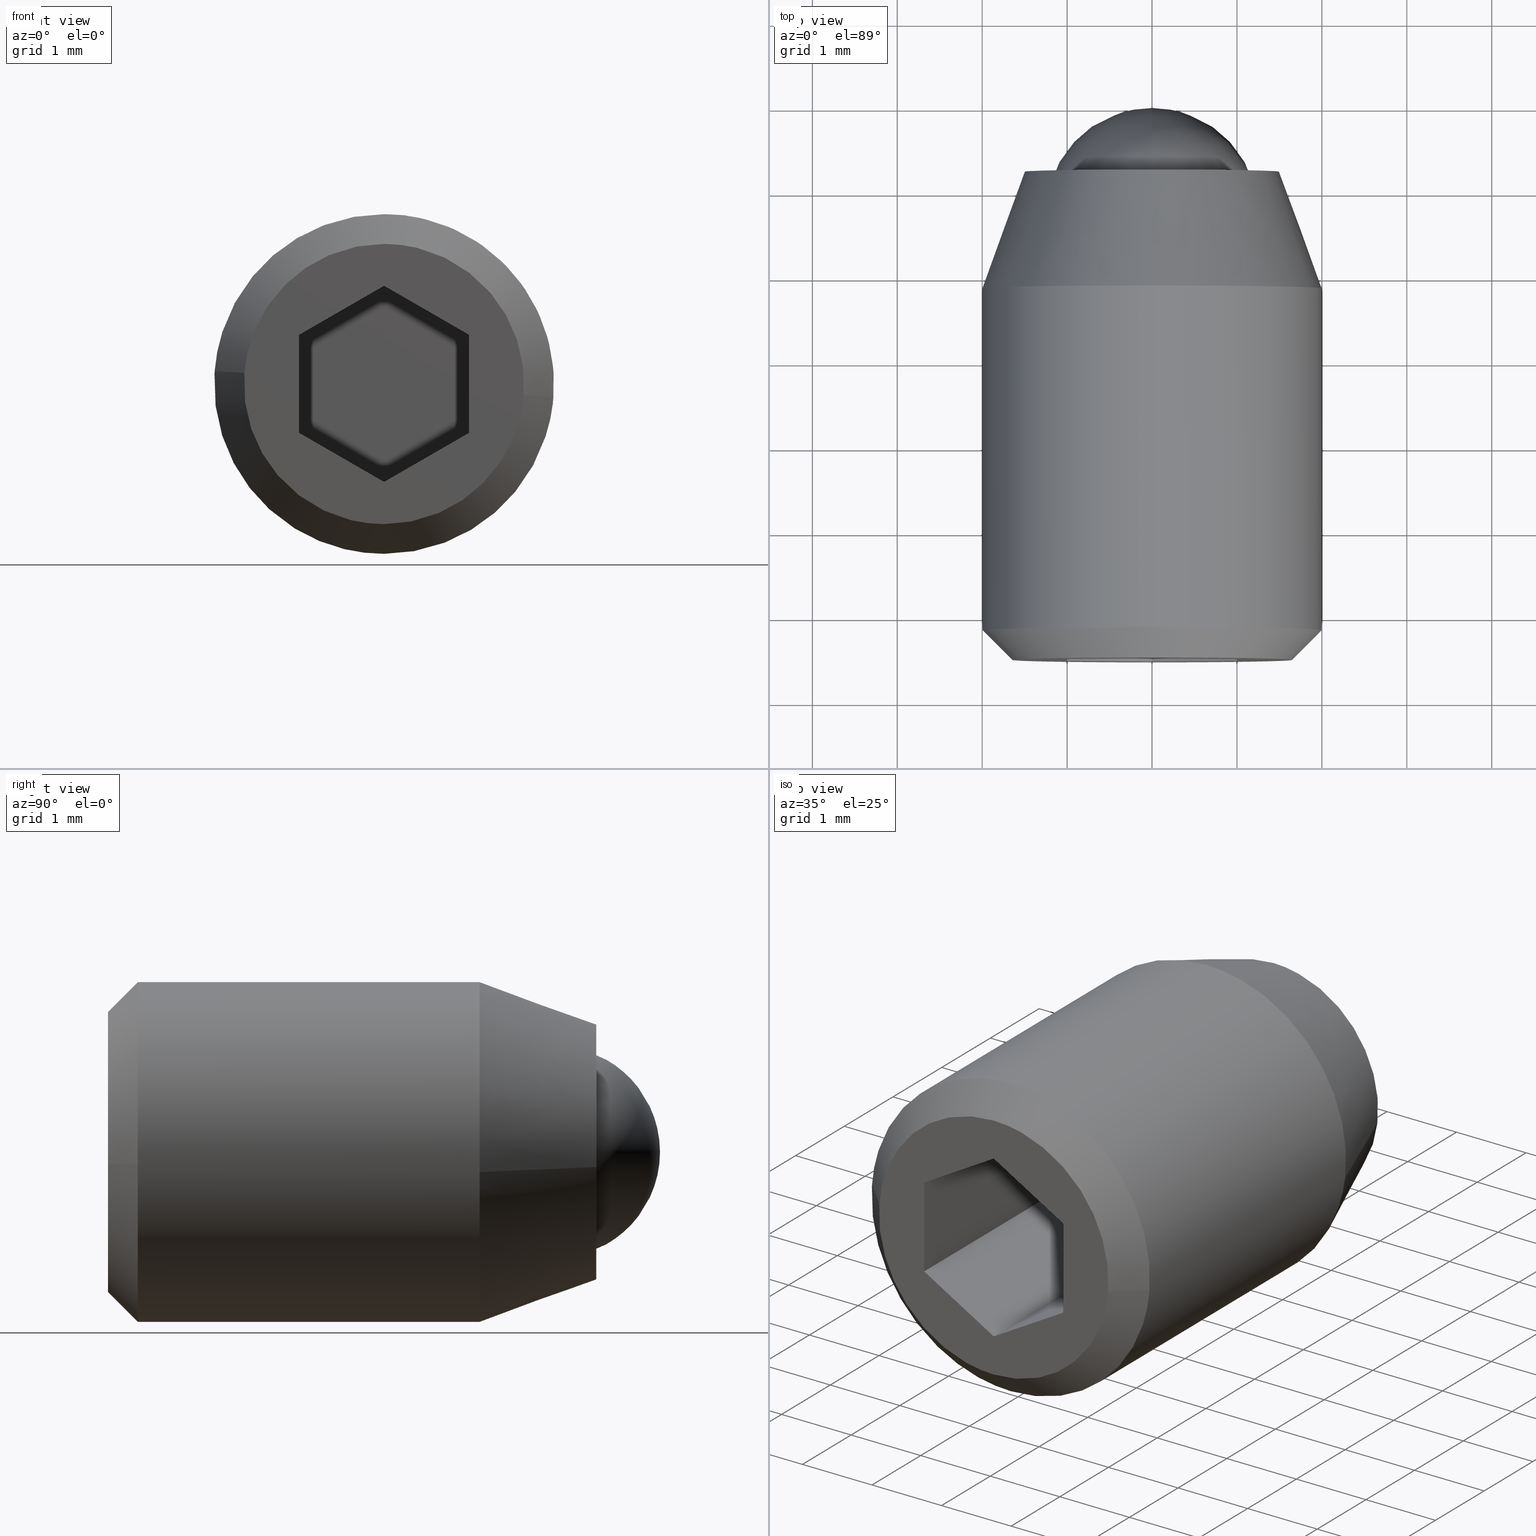
[diagram: canonical four-view strip — front | top / right | iso, engineering-drawing reading convention]
A machine part, canonical four-view strip (front | top / right | iso — engineering-drawing reading convention). The complete STEP part file that produces these views, byte-faithful:
ISO-10303-21;
HEADER;
/****************************************************************
 * Generated by software with PDE/Lib inside                    *
 * PDElib Version 4.4.1-0003, patched  Thursday August 19 11:58 *
 * International Technegroup Inc. (www.iti-oh.com)              *
 ****************************************************************/
FILE_DESCRIPTION((''),'2;1');
FILE_NAME('','2005-07-15T11:48:57',(''),(''),'','CADfix','');
FILE_SCHEMA(('AUTOMOTIVE_DESIGN'));
ENDSEC;
DATA;
#5=APPLICATION_CONTEXT('automotive design');
#6=APPLICATION_PROTOCOL_DEFINITION('Draft International Standard','automotive_design',1998,#5);
#7=PRODUCT_CONTEXT('None',#5,'mechanical');
#8=PRODUCT('body','','None',(#7));
#9=PRODUCT_RELATED_PRODUCT_CATEGORY('part','description',(#8));
#10=PRODUCT_DEFINITION_FORMATION('None','None',#8);
#11=PRODUCT_DEFINITION_CONTEXT('part definition',#5,'design');
#12=PRODUCT_DEFINITION('None','None',#10,#11);
#18=(NAMED_UNIT(*)PLANE_ANGLE_UNIT()SI_UNIT($,.RADIAN.));
#19=DIMENSIONAL_EXPONENTS(0.0,0.0,0.0,0.0,0.0,0.0,0.0);
#20=PLANE_ANGLE_MEASURE_WITH_UNIT(PLANE_ANGLE_MEASURE(0.017453292500000),#18);
#24=(CONVERSION_BASED_UNIT('DEGREE',#20)NAMED_UNIT(#19)PLANE_ANGLE_UNIT());
#28=(NAMED_UNIT(*)SI_UNIT($,.STERADIAN.)SOLID_ANGLE_UNIT());
#32=(LENGTH_UNIT()NAMED_UNIT(*)SI_UNIT(.MILLI.,.METRE.));
#34=UNCERTAINTY_MEASURE_WITH_UNIT(LENGTH_MEASURE(0.001000000000000),#32,'DISTANCE_ACCURACY_VALUE','');
#36=(GEOMETRIC_REPRESENTATION_CONTEXT(3)GLOBAL_UNCERTAINTY_ASSIGNED_CONTEXT((#34))GLOBAL_UNIT_ASSIGNED_CONTEXT((#24,#28,#32))REPRESENTATION_CONTEXT('None','None'));
#37=AXIS2_PLACEMENT_3D('',#38,#39,#40);
#38=CARTESIAN_POINT('',(0.0,0.0,0.0));
#39=DIRECTION('',(0.0,0.0,1.0));
#40=DIRECTION('',(1.0,0.0,0.0));
#41=ADVANCED_BREP_SHAPE_REPRESENTATION('',(#37,#949,#1160),#36);
#42=PRODUCT_DEFINITION_SHAPE('','',#12);
#43=SHAPE_DEFINITION_REPRESENTATION(#42,#41);
#44=CARTESIAN_POINT('',(-1.239072450710571,-0.700000000000029,0.165962465437190));
#45=CARTESIAN_POINT('',(-1.240170265936170,-0.700000000000029,0.156726662109652));
#46=CARTESIAN_POINT('',(-1.245484519310757,-0.700000000000028,0.112018410797472));
#47=CARTESIAN_POINT('',(-1.247668498027333,-0.700000000000028,0.076310674418571));
#48=CARTESIAN_POINT('',(-1.323979172445905,-0.700000000000028,-1.171357823608762));
#49=CARTESIAN_POINT('',(-0.076310674418571,-0.700000000000028,-1.247668498027333));
#50=CARTESIAN_POINT('',(1.171357823608762,-0.700000000000028,-1.323979172445905));
#51=CARTESIAN_POINT('',(1.248217309486603,-0.700000000000028,-0.067337686375873));
#52=CARTESIAN_POINT('',(1.248762860901248,-0.700000000000029,-0.058417999591657));
#53=CARTESIAN_POINT('',(-1.239072450710571,-2.801250000000001,0.165962465437190));
#54=CARTESIAN_POINT('',(-1.240170265936170,-2.801250000000001,0.156726662109652));
#55=CARTESIAN_POINT('',(-1.245484519310757,-2.801250000000001,0.112018410797472));
#56=CARTESIAN_POINT('',(-1.247668498027333,-2.801250000000000,0.076310674418571));
#57=CARTESIAN_POINT('',(-1.323979172445905,-2.801250000000000,-1.171357823608762));
#58=CARTESIAN_POINT('',(-0.076310674418571,-2.801250000000000,-1.247668498027333));
#59=CARTESIAN_POINT('',(1.171357823608762,-2.801250000000000,-1.323979172445905));
#60=CARTESIAN_POINT('',(1.248217309486603,-2.801249999999998,-0.067337686375873));
#61=CARTESIAN_POINT('',(1.248762860901248,-2.801250000000001,-0.058417999591657));
#69=(BOUNDED_SURFACE()B_SPLINE_SURFACE(2,1,((#44,#53),(#45,#54),(#46,#55),(#47,#56),(#48,#57),(#49,#58),(#50,#59),(#51,#60),(#52,#61)),.UNSPECIFIED.,.F.,.F.,.U.)B_SPLINE_SURFACE_WITH_KNOTS((3,1,2,2,1,3),(2,2),(3.062739650619981,3.078760800517997,3.141592653589793,4.712388980384690,6.283185307179586,6.299209214460788),(0.0,2.101249999999972),.UNSPECIFIED.)GEOMETRIC_REPRESENTATION_ITEM()RATIONAL_B_SPLINE_SURFACE(((0.972009114565266,0.972009114565266),(0.974757457680196,0.974757457680196),(0.988284271247462,0.988284271247462),(1.0,1.0),(0.707106781186548,0.707106781186548),(1.0,1.0),(0.707106781186548,0.707106781186548),(1.002987843618871,1.002987843618871),(1.005975687237741,1.005975687237741)))REPRESENTATION_ITEM('')SURFACE());
#70=CARTESIAN_POINT('',(-1.241262042280782,-2.749999999999995,0.147541663240071));
#71=VERTEX_POINT('',#70);
#72=CARTESIAN_POINT('',(0.0,-2.750000000000000,-1.250000000000000));
#73=VERTEX_POINT('',#72);
#74=CARTESIAN_POINT('',(-1.241262042280781,-2.749999999999996,0.147541663240071));
#75=CARTESIAN_POINT('',(-1.250000000000000,-2.750000000000000,0.074029578550991));
#76=CARTESIAN_POINT('',(-1.250000000000000,-2.750000000000000,0.0));
#77=CARTESIAN_POINT('',(-1.250000000000000,-2.750000000000000,-1.250000000000000));
#78=CARTESIAN_POINT('',(0.0,-2.750000000000000,-1.250000000000000));
#86=(BOUNDED_CURVE()B_SPLINE_CURVE(2,(#74,#75,#76,#77,#78),.UNSPECIFIED.,.F.,.U.)B_SPLINE_CURVE_WITH_KNOTS((3,2,3),(0.229562627381117,0.250000000000000,0.500000000000000),.UNSPECIFIED.)CURVE()GEOMETRIC_REPRESENTATION_ITEM()RATIONAL_B_SPLINE_CURVE((0.956027055770732,0.976056128598262,1.0,0.707106781186548,1.0))REPRESENTATION_ITEM(''));
#87=EDGE_CURVE('',#71,#73,#86,.T.);
#88=ORIENTED_EDGE('',*,*,#87,.T.);
#89=CARTESIAN_POINT('',(1.247668620391130,-2.749999999999996,-0.076308673735543));
#90=VERTEX_POINT('',#89);
#91=CARTESIAN_POINT('',(0.0,-2.750000000000000,-1.250000000000000));
#92=CARTESIAN_POINT('',(1.175884472728535,-2.750000000000000,-1.250000000000000));
#93=CARTESIAN_POINT('',(1.247668620391129,-2.749999999999995,-0.076308673735543));
#101=(BOUNDED_CURVE()B_SPLINE_CURVE(2,(#91,#92,#93),.UNSPECIFIED.,.F.,.U.)B_SPLINE_CURVE_WITH_KNOTS((3,3),(0.500000000000000,0.739333238927246),.UNSPECIFIED.)CURVE()GEOMETRIC_REPRESENTATION_ITEM()RATIONAL_B_SPLINE_CURVE((1.0,0.719603669126199,0.976072634663139))REPRESENTATION_ITEM(''));
#102=EDGE_CURVE('',#73,#90,#101,.T.);
#103=ORIENTED_EDGE('',*,*,#102,.T.);
#104=CARTESIAN_POINT('',(1.247668618881896,-0.750000000000028,-0.076308698412574));
#105=VERTEX_POINT('',#104);
#106=CARTESIAN_POINT('',(1.247668618881896,-0.750000000000028,-0.076308698412574));
#107=CARTESIAN_POINT('',(1.247668620391130,-2.749999999999996,-0.076308673735543));
#108=QUASI_UNIFORM_CURVE('',1,(#106,#107),.UNSPECIFIED.,.F.,.U.);
#109=EDGE_CURVE('',#105,#90,#108,.T.);
#110=ORIENTED_EDGE('',*,*,#109,.F.);
#111=CARTESIAN_POINT('',(0.0,-0.750000000000028,-1.250000000000000));
#112=VERTEX_POINT('',#111);
#113=CARTESIAN_POINT('',(0.0,-0.750000000000028,-1.250000000000000));
#114=CARTESIAN_POINT('',(1.175884449427832,-0.750000000000028,-1.250000000000000));
#115=CARTESIAN_POINT('',(1.247668618881896,-0.750000000000028,-0.076308698412574));
#123=(BOUNDED_CURVE()B_SPLINE_CURVE(2,(#113,#114,#115),.UNSPECIFIED.,.F.,.U.)B_SPLINE_CURVE_WITH_KNOTS((3,3),(0.500000000000000,0.739333235514525),.UNSPECIFIED.)CURVE()GEOMETRIC_REPRESENTATION_ITEM()RATIONAL_B_SPLINE_CURVE((1.0,0.719603673124450,0.976072627349011))REPRESENTATION_ITEM(''));
#124=EDGE_CURVE('',#112,#105,#123,.T.);
#125=ORIENTED_EDGE('',*,*,#124,.F.);
#126=CARTESIAN_POINT('',(-1.241262040625028,-0.750000000000028,0.147541677169969));
#127=VERTEX_POINT('',#126);
#128=CARTESIAN_POINT('',(-1.241262040625028,-0.750000000000028,0.147541677169969));
#129=CARTESIAN_POINT('',(-1.250000000000000,-0.750000000000028,0.074029585589570));
#130=CARTESIAN_POINT('',(-1.250000000000000,-0.750000000000028,0.0));
#131=CARTESIAN_POINT('',(-1.250000000000000,-0.750000000000028,-1.250000000000000));
#132=CARTESIAN_POINT('',(0.0,-0.750000000000028,-1.250000000000000));
#140=(BOUNDED_CURVE()B_SPLINE_CURVE(2,(#128,#129,#130,#131,#132),.UNSPECIFIED.,.F.,.U.)B_SPLINE_CURVE_WITH_KNOTS((3,2,3),(0.229562625484500,0.250000000000000,0.500000000000000),.UNSPECIFIED.)CURVE()GEOMETRIC_REPRESENTATION_ITEM()RATIONAL_B_SPLINE_CURVE((0.956027052053280,0.976056126376237,1.0,0.707106781186548,1.0))REPRESENTATION_ITEM(''));
#141=EDGE_CURVE('',#127,#112,#140,.T.);
#142=ORIENTED_EDGE('',*,*,#141,.F.);
#143=CARTESIAN_POINT('',(-1.241262040625028,-0.750000000000028,0.147541677169969));
#144=CARTESIAN_POINT('',(-1.241262042280782,-2.749999999999995,0.147541663240071));
#145=QUASI_UNIFORM_CURVE('',1,(#143,#144),.UNSPECIFIED.,.F.,.U.);
#146=EDGE_CURVE('',#127,#71,#145,.T.);
#147=ORIENTED_EDGE('',*,*,#146,.T.);
#148=EDGE_LOOP('',(#88,#103,#110,#125,#142,#147));
#149=FACE_OUTER_BOUND('',#148,.T.);
#150=ADVANCED_FACE('',(#149),#69,.F.);
#151=CARTESIAN_POINT('',(1.247668498027333,-0.700000000000028,-0.076310674418571));
#152=CARTESIAN_POINT('',(1.323979172445905,-0.700000000000028,1.171357823608762));
#153=CARTESIAN_POINT('',(0.076310674418571,-0.700000000000028,1.247668498027333));
#154=CARTESIAN_POINT('',(-1.101929363549376,-0.700000000000028,1.319732745915659));
#155=CARTESIAN_POINT('',(-1.241261907954584,-0.700000000000029,0.147542793320948));
#156=CARTESIAN_POINT('',(1.247668498027333,-2.801250000000000,-0.076310674418571));
#157=CARTESIAN_POINT('',(1.323979172445905,-2.801250000000000,1.171357823608762));
#158=CARTESIAN_POINT('',(0.076310674418571,-2.801250000000000,1.247668498027333));
#159=CARTESIAN_POINT('',(-1.101929363549376,-2.801250000000001,1.319732745915659));
#160=CARTESIAN_POINT('',(-1.241261907954584,-2.801250000000000,0.147542793320948));
#168=(BOUNDED_SURFACE()B_SPLINE_SURFACE(2,1,((#151,#156),(#152,#157),(#153,#158),(#154,#159),(#155,#160)),.UNSPECIFIED.,.F.,.F.,.U.)B_SPLINE_SURFACE_WITH_KNOTS((3,2,3),(2,2),(0.0,1.570796326794897,3.078760800517997),(0.0,2.101249999999972),.UNSPECIFIED.)GEOMETRIC_REPRESENTATION_ITEM()RATIONAL_B_SPLINE_SURFACE(((1.0,1.0),(0.707106781186548,0.707106781186548),(1.0,1.0),(0.718822509939086,0.718822509939086),(0.977505800795127,0.977505800795127)))REPRESENTATION_ITEM('')SURFACE());
#169=CARTESIAN_POINT('',(0.0,-2.750000000000000,1.250000000000000));
#170=VERTEX_POINT('',#169);
#171=CARTESIAN_POINT('',(0.0,-2.750000000000000,1.250000000000000));
#172=CARTESIAN_POINT('',(-1.110219175329889,-2.750000000000000,1.250000000000000));
#173=CARTESIAN_POINT('',(-1.241262042280781,-2.749999999999996,0.147541663240071));
#181=(BOUNDED_CURVE()B_SPLINE_CURVE(2,(#171,#172,#173),.UNSPECIFIED.,.F.,.U.)B_SPLINE_CURVE_WITH_KNOTS((3,3),(0.0,0.229562627381117),.UNSPECIFIED.)CURVE()GEOMETRIC_REPRESENTATION_ITEM()RATIONAL_B_SPLINE_CURVE((1.0,0.731050652588285,0.956027055770732))REPRESENTATION_ITEM(''));
#182=EDGE_CURVE('',#170,#71,#181,.T.);
#183=ORIENTED_EDGE('',*,*,#182,.T.);
#184=ORIENTED_EDGE('',*,*,#146,.F.);
#185=CARTESIAN_POINT('',(0.0,-0.750000000000028,1.250000000000000));
#186=VERTEX_POINT('',#185);
#187=CARTESIAN_POINT('',(0.0,-0.750000000000028,1.250000000000000));
#188=CARTESIAN_POINT('',(-1.110219162782896,-0.750000000000028,1.250000000000000));
#189=CARTESIAN_POINT('',(-1.241262040625028,-0.750000000000028,0.147541677169969));
#197=(BOUNDED_CURVE()B_SPLINE_CURVE(2,(#187,#188,#189),.UNSPECIFIED.,.F.,.U.)B_SPLINE_CURVE_WITH_KNOTS((3,3),(0.0,0.229562625484500),.UNSPECIFIED.)CURVE()GEOMETRIC_REPRESENTATION_ITEM()RATIONAL_B_SPLINE_CURVE((1.0,0.731050654810310,0.956027052053280))REPRESENTATION_ITEM(''));
#198=EDGE_CURVE('',#186,#127,#197,.T.);
#199=ORIENTED_EDGE('',*,*,#198,.F.);
#200=CARTESIAN_POINT('',(1.247668618881896,-0.750000000000028,-0.076308698412574));
#201=CARTESIAN_POINT('',(1.250000000000000,-0.750000000000028,-0.038189963350093));
#202=CARTESIAN_POINT('',(1.250000000000000,-0.750000000000028,0.0));
#203=CARTESIAN_POINT('',(1.250000000000000,-0.750000000000028,1.250000000000000));
#204=CARTESIAN_POINT('',(0.0,-0.750000000000028,1.250000000000000));
#212=(BOUNDED_CURVE()B_SPLINE_CURVE(2,(#200,#201,#202,#203,#204),.UNSPECIFIED.,.F.,.U.)B_SPLINE_CURVE_WITH_KNOTS((3,2,3),(0.739333235514525,0.750000000000000,1.0),.UNSPECIFIED.)CURVE()GEOMETRIC_REPRESENTATION_ITEM()RATIONAL_B_SPLINE_CURVE((0.976072627349011,0.987503108062097,1.0,0.707106781186548,1.0))REPRESENTATION_ITEM(''));
#213=EDGE_CURVE('',#105,#186,#212,.T.);
#214=ORIENTED_EDGE('',*,*,#213,.F.);
#215=ORIENTED_EDGE('',*,*,#109,.T.);
#216=CARTESIAN_POINT('',(1.247668620391129,-2.749999999999995,-0.076308673735543));
#217=CARTESIAN_POINT('',(1.250000000000000,-2.750000000000000,-0.038189950976985));
#218=CARTESIAN_POINT('',(1.250000000000000,-2.750000000000000,0.0));
#219=CARTESIAN_POINT('',(1.250000000000000,-2.750000000000000,1.250000000000000));
#220=CARTESIAN_POINT('',(0.0,-2.750000000000000,1.250000000000000));
#228=(BOUNDED_CURVE()B_SPLINE_CURVE(2,(#216,#217,#218,#219,#220),.UNSPECIFIED.,.F.,.U.)B_SPLINE_CURVE_WITH_KNOTS((3,2,3),(0.739333238927246,0.750000000000000,1.0),.UNSPECIFIED.)CURVE()GEOMETRIC_REPRESENTATION_ITEM()RATIONAL_B_SPLINE_CURVE((0.976072634663139,0.987503112060348,1.0,0.707106781186548,1.0))REPRESENTATION_ITEM(''));
#229=EDGE_CURVE('',#90,#170,#228,.T.);
#230=ORIENTED_EDGE('',*,*,#229,.T.);
#231=EDGE_LOOP('',(#183,#184,#199,#214,#215,#230));
#232=FACE_OUTER_BOUND('',#231,.T.);
#233=ADVANCED_FACE('',(#232),#168,.F.);
#234=CARTESIAN_POINT('',(-0.468647227970026,-2.023082475000000,-1.944317303249655));
#235=CARTESIAN_POINT('',(-0.297656594332521,-2.023082474999999,-1.985531916897912));
#236=CARTESIAN_POINT('',(-0.122097079069714,-2.023082474999999,-1.996269596843734));
#237=CARTESIAN_POINT('',(1.874172517774020,-2.023082475000000,-2.118366675913449));
#238=CARTESIAN_POINT('',(1.996269596843733,-2.023082474999999,-0.122097079069714));
#239=CARTESIAN_POINT('',(2.118366675913447,-2.023082475000000,1.874172517774019));
#240=CARTESIAN_POINT('',(0.122097079069714,-2.023082474999999,1.996269596843733));
#241=CARTESIAN_POINT('',(-1.874172517774020,-2.023082475000000,2.118366675913447));
#242=CARTESIAN_POINT('',(-1.996269596843733,-2.023082474999999,0.122097079069714));
#243=CARTESIAN_POINT('',(-0.468647227970026,-6.253172938125003,-1.944317303249655));
#244=CARTESIAN_POINT('',(-0.297656594332521,-6.253172938125002,-1.985531916897912));
#245=CARTESIAN_POINT('',(-0.122097079069714,-6.253172938125003,-1.996269596843734));
#246=CARTESIAN_POINT('',(1.874172517774020,-6.253172938125003,-2.118366675913449));
#247=CARTESIAN_POINT('',(1.996269596843733,-6.253172938125003,-0.122097079069714));
#248=CARTESIAN_POINT('',(2.118366675913447,-6.253172938125003,1.874172517774019));
#249=CARTESIAN_POINT('',(0.122097079069714,-6.253172938125003,1.996269596843733));
#250=CARTESIAN_POINT('',(-1.874172517774020,-6.253172938125003,2.118366675913447));
#251=CARTESIAN_POINT('',(-1.996269596843733,-6.253172938125003,0.122097079069714));
#259=(BOUNDED_SURFACE()B_SPLINE_SURFACE(2,1,((#234,#243),(#235,#244),(#236,#245),(#237,#246),(#238,#247),(#239,#248),(#240,#249),(#241,#250),(#242,#251)),.UNSPECIFIED.,.F.,.F.,.U.)B_SPLINE_SURFACE_WITH_KNOTS((3,2,2,2,3),(2,2),(0.0,0.397645019878171,3.711353518862931,7.025062017847690,10.338770516832451),(0.0,4.230090463125004),.UNSPECIFIED.)GEOMETRIC_REPRESENTATION_ITEM()RATIONAL_B_SPLINE_SURFACE(((0.938140952186599,0.938140952186599),(0.964852813742386,0.964852813742386),(1.0,1.0),(0.707106781186548,0.707106781186548),(1.0,1.0),(0.707106781186548,0.707106781186548),(1.0,1.0),(0.707106781186548,0.707106781186548),(1.0,1.0)))REPRESENTATION_ITEM('')SURFACE());
#260=CARTESIAN_POINT('',(-0.468646445757333,-6.150000000000000,-1.944317491789438));
#261=VERTEX_POINT('',#260);
#262=CARTESIAN_POINT('',(0.0,-6.150000000000000,-2.0));
#263=VERTEX_POINT('',#262);
#264=CARTESIAN_POINT('',(-0.468646445757333,-6.150000000000000,-1.944317491789438));
#265=CARTESIAN_POINT('',(-0.237630790177895,-6.150000000000000,-2.000000000000001));
#266=CARTESIAN_POINT('',(0.0,-6.150000000000000,-2.0));
#274=(BOUNDED_CURVE()B_SPLINE_CURVE(2,(#264,#265,#266),.UNSPECIFIED.,.F.,.U.)B_SPLINE_CURVE_WITH_KNOTS((3,3),(0.959962840916567,1.0),.UNSPECIFIED.)CURVE()GEOMETRIC_REPRESENTATION_ITEM()RATIONAL_B_SPLINE_CURVE((0.921211108703644,0.953093550415628,1.0))REPRESENTATION_ITEM(''));
#275=EDGE_CURVE('',#261,#263,#274,.T.);
#276=ORIENTED_EDGE('',*,*,#275,.F.);
#277=CARTESIAN_POINT('',(-0.468646455401585,-2.123739000000001,-1.944317489464851));
#278=VERTEX_POINT('',#277);
#279=CARTESIAN_POINT('',(-0.468646455401585,-2.123739000000001,-1.944317489464851));
#280=CARTESIAN_POINT('',(-0.468646445757333,-6.150000000000000,-1.944317491789438));
#281=QUASI_UNIFORM_CURVE('',1,(#279,#280),.UNSPECIFIED.,.F.,.U.);
#282=EDGE_CURVE('',#278,#261,#281,.T.);
#283=ORIENTED_EDGE('',*,*,#282,.F.);
#284=CARTESIAN_POINT('',(0.0,-2.123739000000000,-2.0));
#285=VERTEX_POINT('',#284);
#286=CARTESIAN_POINT('',(-0.468646455401585,-2.123739000000001,-1.944317489464851));
#287=CARTESIAN_POINT('',(-0.237630800238393,-2.123739000000000,-2.000000000000000));
#288=CARTESIAN_POINT('',(0.0,-2.123739000000000,-2.0));
#296=(BOUNDED_CURVE()B_SPLINE_CURVE(2,(#286,#287,#288),.UNSPECIFIED.,.F.,.U.)B_SPLINE_CURVE_WITH_KNOTS((3,3),(0.959962839301035,1.0),.UNSPECIFIED.)CURVE()GEOMETRIC_REPRESENTATION_ITEM()RATIONAL_B_SPLINE_CURVE((0.921211106130680,0.953093548522915,1.0))REPRESENTATION_ITEM(''));
#297=EDGE_CURVE('',#278,#285,#296,.T.);
#298=ORIENTED_EDGE('',*,*,#297,.T.);
#299=CARTESIAN_POINT('',(1.986018947549469,-2.123738550367196,-0.236067967675831));
#300=VERTEX_POINT('',#299);
#301=CARTESIAN_POINT('',(0.0,-2.123739000000000,-2.0));
#302=CARTESIAN_POINT('',(1.776349920778663,-2.123739000000000,-2.000000000000000));
#303=CARTESIAN_POINT('',(1.986018947549469,-2.123738550367196,-0.236067967675831));
#311=(BOUNDED_CURVE()B_SPLINE_CURVE(2,(#301,#302,#303),.UNSPECIFIED.,.F.,.U.)B_SPLINE_CURVE_WITH_KNOTS((3,3),(0.0,0.229562555603303),.UNSPECIFIED.)CURVE()GEOMETRIC_REPRESENTATION_ITEM()RATIONAL_B_SPLINE_CURVE((1.0,0.731050736681225,0.956026915083120))REPRESENTATION_ITEM(''));
#312=EDGE_CURVE('',#285,#300,#311,.T.);
#313=ORIENTED_EDGE('',*,*,#312,.T.);
#314=CARTESIAN_POINT('',(0.0,-2.123739000000000,2.0));
#315=VERTEX_POINT('',#314);
#316=CARTESIAN_POINT('',(1.986018947549469,-2.123738550367196,-0.236067967675831));
#317=CARTESIAN_POINT('',(2.000000000000000,-2.123739000000000,-0.118447751883767));
#318=CARTESIAN_POINT('',(2.0,-2.123739000000000,-4.439198E-016));
#319=CARTESIAN_POINT('',(2.000000000000000,-2.123739000000000,2.000000000000000));
#320=CARTESIAN_POINT('',(0.0,-2.123739000000000,2.0));
#328=(BOUNDED_CURVE()B_SPLINE_CURVE(2,(#316,#317,#318,#319,#320),.UNSPECIFIED.,.F.,.U.)B_SPLINE_CURVE_WITH_KNOTS((3,2,3),(0.229562555603303,0.250000000000000,0.500000000000000),.UNSPECIFIED.)CURVE()GEOMETRIC_REPRESENTATION_ITEM()RATIONAL_B_SPLINE_CURVE((0.956026915083120,0.976056044505322,1.0,0.707106781186548,1.0))REPRESENTATION_ITEM(''));
#329=EDGE_CURVE('',#300,#315,#328,.T.);
#330=ORIENTED_EDGE('',*,*,#329,.T.);
#331=CARTESIAN_POINT('',(-1.996269361620150,-2.123737383784706,0.122096106656471));
#332=VERTEX_POINT('',#331);
#333=CARTESIAN_POINT('',(0.0,-2.123739000000000,2.0));
#334=CARTESIAN_POINT('',(-1.881412888232733,-2.123738191892353,1.999999991021386));
#335=CARTESIAN_POINT('',(-1.996269361620151,-2.123737383784706,0.122096106656471));
#343=(BOUNDED_CURVE()B_SPLINE_CURVE(2,(#333,#334,#335),.UNSPECIFIED.,.F.,.U.)B_SPLINE_CURVE_WITH_KNOTS((3,3),(0.500000000000000,0.739333044740011),.UNSPECIFIED.)CURVE()GEOMETRIC_REPRESENTATION_ITEM()RATIONAL_B_SPLINE_CURVE((1.0,0.719603896630697,0.976072218482274))REPRESENTATION_ITEM(''));
#344=EDGE_CURVE('',#315,#332,#343,.T.);
#345=ORIENTED_EDGE('',*,*,#344,.T.);
#346=CARTESIAN_POINT('',(-1.996269606912893,-6.150000000000000,0.122096914440200));
#347=VERTEX_POINT('',#346);
#348=CARTESIAN_POINT('',(-1.996269361620150,-2.123737383784706,0.122096106656471));
#349=CARTESIAN_POINT('',(-1.996269606912893,-6.150000000000000,0.122096914440200));
#350=QUASI_UNIFORM_CURVE('',1,(#348,#349),.UNSPECIFIED.,.F.,.U.);
#351=EDGE_CURVE('',#332,#347,#350,.T.);
#352=ORIENTED_EDGE('',*,*,#351,.T.);
#353=CARTESIAN_POINT('',(-1.993834667755136,-6.149999999649104,0.156918192257462));
#354=VERTEX_POINT('',#353);
#355=CARTESIAN_POINT('',(-1.993834667755136,-6.149999999649105,0.156918192257462));
#356=CARTESIAN_POINT('',(-1.995204084671445,-6.150000000000000,0.139518096250091));
#357=CARTESIAN_POINT('',(-1.996269606912892,-6.150000000000000,0.122096914440200));
#365=(BOUNDED_CURVE()B_SPLINE_CURVE(2,(#355,#356,#357),.UNSPECIFIED.,.F.,.U.)B_SPLINE_CURVE_WITH_KNOTS((3,3),(0.736331300499633,0.739332990701346),.UNSPECIFIED.)CURVE()GEOMETRIC_REPRESENTATION_ITEM()RATIONAL_B_SPLINE_CURVE((0.969723355893974,0.972855505118960,0.976072102667074))REPRESENTATION_ITEM(''));
#366=EDGE_CURVE('',#354,#347,#365,.T.);
#367=ORIENTED_EDGE('',*,*,#366,.F.);
#368=CARTESIAN_POINT('',(0.0,-6.150000000000000,2.0));
#369=VERTEX_POINT('',#368);
#370=CARTESIAN_POINT('',(0.0,-6.150000000000000,2.0));
#371=CARTESIAN_POINT('',(-1.848780981876145,-6.150000000000001,2.000000000000000));
#372=CARTESIAN_POINT('',(-1.993834667755136,-6.149999999649105,0.156918192257462));
#380=(BOUNDED_CURVE()B_SPLINE_CURVE(2,(#370,#371,#372),.UNSPECIFIED.,.F.,.U.)B_SPLINE_CURVE_WITH_KNOTS((3,3),(0.500000000000000,0.736331300499633),.UNSPECIFIED.)CURVE()GEOMETRIC_REPRESENTATION_ITEM()RATIONAL_B_SPLINE_CURVE((1.0,0.723120658761173,0.969723355893974))REPRESENTATION_ITEM(''));
#381=EDGE_CURVE('',#369,#354,#380,.T.);
#382=ORIENTED_EDGE('',*,*,#381,.F.);
#383=CARTESIAN_POINT('',(1.993834667755136,-6.149999999649104,-0.156918192257463));
#384=VERTEX_POINT('',#383);
#385=CARTESIAN_POINT('',(1.993834667755136,-6.149999999649105,-0.156918192257463));
#386=CARTESIAN_POINT('',(2.000000000000000,-6.150000000000000,-0.078580214793174));
#387=CARTESIAN_POINT('',(2.0,-6.150000000000000,-4.439198E-016));
#388=CARTESIAN_POINT('',(2.000000000000000,-6.150000000000002,2.000000000000000));
#389=CARTESIAN_POINT('',(0.0,-6.150000000000000,2.0));
#397=(BOUNDED_CURVE()B_SPLINE_CURVE(2,(#385,#386,#387,#388,#389),.UNSPECIFIED.,.F.,.U.)B_SPLINE_CURVE_WITH_KNOTS((3,2,3),(0.236331300499633,0.250000000000000,0.500000000000000),.UNSPECIFIED.)CURVE()GEOMETRIC_REPRESENTATION_ITEM()RATIONAL_B_SPLINE_CURVE((0.969723355893974,0.983986122425374,1.0,0.707106781186548,1.0))REPRESENTATION_ITEM(''));
#398=EDGE_CURVE('',#384,#369,#397,.T.);
#399=ORIENTED_EDGE('',*,*,#398,.F.);
#400=CARTESIAN_POINT('',(0.0,-6.150000000000000,-2.0));
#401=CARTESIAN_POINT('',(1.848780981876145,-6.150000000000001,-2.000000000000000));
#402=CARTESIAN_POINT('',(1.993834667755136,-6.149999999649105,-0.156918192257463));
#410=(BOUNDED_CURVE()B_SPLINE_CURVE(2,(#400,#401,#402),.UNSPECIFIED.,.F.,.U.)B_SPLINE_CURVE_WITH_KNOTS((3,3),(0.0,0.236331300499633),.UNSPECIFIED.)CURVE()GEOMETRIC_REPRESENTATION_ITEM()RATIONAL_B_SPLINE_CURVE((1.0,0.723120658761173,0.969723355893974))REPRESENTATION_ITEM(''));
#411=EDGE_CURVE('',#263,#384,#410,.T.);
#412=ORIENTED_EDGE('',*,*,#411,.F.);
#413=EDGE_LOOP('',(#276,#283,#298,#313,#330,#345,#352,#367,#382,#399,#412));
#414=FACE_OUTER_BOUND('',#413,.T.);
#415=ADVANCED_FACE('',(#414),#259,.T.);
#416=CARTESIAN_POINT('',(-1.996269596843733,-2.023082474999999,0.122097079069714));
#417=CARTESIAN_POINT('',(-2.098627273861051,-2.023082474999999,-1.551436147032736));
#418=CARTESIAN_POINT('',(-0.468647227970026,-2.023082475000000,-1.944317303249655));
#419=CARTESIAN_POINT('',(-1.996269596843733,-6.253172938125003,0.122097079069714));
#420=CARTESIAN_POINT('',(-2.098627273861051,-6.253172938125003,-1.551436147032736));
#421=CARTESIAN_POINT('',(-0.468647227970026,-6.253172938125003,-1.944317303249655));
#429=(BOUNDED_SURFACE()B_SPLINE_SURFACE(2,1,((#416,#419),(#417,#420),(#418,#421)),.UNSPECIFIED.,.F.,.F.,.U.)B_SPLINE_SURFACE_WITH_KNOTS((3,3),(2,2),(0.0,2.908876664709617),(0.0,4.230090463125004),.UNSPECIFIED.)GEOMETRIC_REPRESENTATION_ITEM()RATIONAL_B_SPLINE_SURFACE(((1.0,1.0),(0.742253967444162,0.742253967444162),(0.938140952186599,0.938140952186599)))REPRESENTATION_ITEM('')SURFACE());
#430=CARTESIAN_POINT('',(-1.996269606912892,-6.150000000000000,0.122096914440200));
#431=CARTESIAN_POINT('',(-2.000000000000000,-6.150000000000000,0.061105361506060));
#432=CARTESIAN_POINT('',(-2.0,-6.150000000000000,-4.439198E-016));
#433=CARTESIAN_POINT('',(-1.999999999999999,-6.150000000000001,-1.575210010121462));
#434=CARTESIAN_POINT('',(-0.468646445757333,-6.150000000000000,-1.944317491789438));
#442=(BOUNDED_CURVE()B_SPLINE_CURVE(2,(#430,#431,#432,#433,#434),.UNSPECIFIED.,.F.,.U.)B_SPLINE_CURVE_WITH_KNOTS((3,2,3),(0.739332990701346,0.750000000000000,0.959962840916567),.UNSPECIFIED.)CURVE()GEOMETRIC_REPRESENTATION_ITEM()RATIONAL_B_SPLINE_CURVE((0.976072102667072,0.987502821245616,1.0,0.754013230770919,0.921211108703645))REPRESENTATION_ITEM(''));
#443=EDGE_CURVE('',#347,#261,#442,.T.);
#444=ORIENTED_EDGE('',*,*,#443,.F.);
#445=ORIENTED_EDGE('',*,*,#351,.F.);
#446=CARTESIAN_POINT('',(-1.996269361620151,-2.123737383784706,0.122096106656471));
#447=CARTESIAN_POINT('',(-1.999999725827601,-2.123737413235773,0.061105033794331));
#448=CARTESIAN_POINT('',(-1.999999746213645,-2.123737444139167,-0.000000010332801));
#449=CARTESIAN_POINT('',(-2.000000271739791,-2.123738240789173,-1.575209903741137));
#450=CARTESIAN_POINT('',(-0.468646455401585,-2.123739000000000,-1.944317489464851));
#458=(BOUNDED_CURVE()B_SPLINE_CURVE(2,(#446,#447,#448,#449,#450),.UNSPECIFIED.,.F.,.U.)B_SPLINE_CURVE_WITH_KNOTS((3,2,3),(0.739333044740011,0.750000000000000,0.959962839301034),.UNSPECIFIED.)CURVE()GEOMETRIC_REPRESENTATION_ITEM()RATIONAL_B_SPLINE_CURVE((0.976072218482274,0.987502884555851,1.0,0.754013232663634,0.921211106130678))REPRESENTATION_ITEM(''));
#459=EDGE_CURVE('',#332,#278,#458,.T.);
#460=ORIENTED_EDGE('',*,*,#459,.T.);
#461=ORIENTED_EDGE('',*,*,#282,.T.);
#462=EDGE_LOOP('',(#444,#445,#460,#461));
#463=FACE_OUTER_BOUND('',#462,.T.);
#464=ADVANCED_FACE('',(#463),#429,.T.);
#465=CARTESIAN_POINT('',(1.477101670465954,-0.715656525000000,-0.175575924051929));
#466=CARTESIAN_POINT('',(1.482126577979801,-0.715656525000000,-0.133301908848992));
#467=CARTESIAN_POINT('',(1.484725512652527,-0.715656525000000,-0.090809702558100));
#468=CARTESIAN_POINT('',(1.575535215210627,-0.715656525000000,1.393915810094426));
#469=CARTESIAN_POINT('',(0.090809702558100,-0.715656525000000,1.484725512652526));
#470=CARTESIAN_POINT('',(-1.393915810094427,-0.715656525000000,1.575535215210626));
#471=CARTESIAN_POINT('',(-1.484725512652527,-0.715656525000000,0.090809702558099));
#472=CARTESIAN_POINT('',(1.998741987283866,-2.158941061875002,-0.237580782945057));
#473=CARTESIAN_POINT('',(2.005541447220145,-2.158941061875001,-0.180377645986630));
#474=CARTESIAN_POINT('',(2.009058198948512,-2.158941061875001,-0.122879263482505));
#475=CARTESIAN_POINT('',(2.131937462431017,-2.158941061875001,1.886178935466008));
#476=CARTESIAN_POINT('',(0.122879263482504,-2.158941061875001,2.009058198948512));
#477=CARTESIAN_POINT('',(-1.886178935466008,-2.158941061875001,2.131937462431016));
#478=CARTESIAN_POINT('',(-2.009058198948512,-2.158941061875001,0.122879263482504));
#486=(BOUNDED_SURFACE()B_SPLINE_SURFACE(2,1,((#465,#472),(#466,#473),(#467,#474),(#468,#475),(#469,#476),(#470,#477),(#471,#478)),.UNSPECIFIED.,.F.,.F.,.U.)B_SPLINE_SURFACE_WITH_KNOTS((3,2,2,3),(2,2),(0.0,0.133397477762255,3.468334421818635,6.803271365875014),(0.0,1.0),.UNSPECIFIED.)GEOMETRIC_REPRESENTATION_ITEM()RATIONAL_B_SPLINE_SURFACE(((0.977505800795127,0.977505800795127),(0.988284271247462,0.988284271247462),(1.0,1.0),(0.707106781186548,0.707106781186548),(1.0,1.0),(0.707106781186548,0.707106781186548),(1.0,1.0)))REPRESENTATION_ITEM('')SURFACE());
#487=ORIENTED_EDGE('',*,*,#329,.F.);
#488=CARTESIAN_POINT('',(1.489514289545275,-0.750000000000838,-0.177051351989616));
#489=VERTEX_POINT('',#488);
#490=CARTESIAN_POINT('',(1.489514289545275,-0.750000000000838,-0.177051351989616));
#491=CARTESIAN_POINT('',(1.986018947549469,-2.123738550367196,-0.236067967675831));
#492=QUASI_UNIFORM_CURVE('',1,(#490,#491),.UNSPECIFIED.,.F.,.U.);
#493=EDGE_CURVE('',#489,#300,#492,.T.);
#494=ORIENTED_EDGE('',*,*,#493,.F.);
#495=CARTESIAN_POINT('',(0.0,-0.750000000000000,1.500000000000000));
#496=VERTEX_POINT('',#495);
#497=CARTESIAN_POINT('',(1.489514289545275,-0.750000000000838,-0.177051351989616));
#498=CARTESIAN_POINT('',(1.500000000000000,-0.750000000000000,-0.088836179482354));
#499=CARTESIAN_POINT('',(1.500000000000000,-0.750000000000000,-4.439198E-016));
#500=CARTESIAN_POINT('',(1.500000000000000,-0.750000000000000,1.500000000000000));
#501=CARTESIAN_POINT('',(0.0,-0.750000000000000,1.500000000000000));
#509=(BOUNDED_CURVE()B_SPLINE_CURVE(2,(#497,#498,#499,#500,#501),.UNSPECIFIED.,.F.,.U.)B_SPLINE_CURVE_WITH_KNOTS((3,2,3),(0.229562473514636,0.250000000000000,0.500000000000000),.UNSPECIFIED.)CURVE()GEOMETRIC_REPRESENTATION_ITEM()RATIONAL_B_SPLINE_CURVE((0.956026754185910,0.976055948332467,1.0,0.707106781186548,1.0))REPRESENTATION_ITEM(''));
#510=EDGE_CURVE('',#489,#496,#509,.T.);
#511=ORIENTED_EDGE('',*,*,#510,.T.);
#512=CARTESIAN_POINT('',(-1.497202032713825,-0.749999434204483,0.091572132437434));
#513=VERTEX_POINT('',#512);
#514=CARTESIAN_POINT('',(0.0,-0.750000000000000,1.500000000000000));
#515=CARTESIAN_POINT('',(-1.411060354843242,-0.750000000000000,1.500000000000000));
#516=CARTESIAN_POINT('',(-1.497202032713825,-0.749999434204483,0.091572132437434));
#524=(BOUNDED_CURVE()B_SPLINE_CURVE(2,(#514,#515,#516),.UNSPECIFIED.,.F.,.U.)B_SPLINE_CURVE_WITH_KNOTS((3,3),(0.500000000000000,0.739333115356404),.UNSPECIFIED.)CURVE()GEOMETRIC_REPRESENTATION_ITEM()RATIONAL_B_SPLINE_CURVE((1.0,0.719603813898446,0.976072369826803))REPRESENTATION_ITEM(''));
#525=EDGE_CURVE('',#496,#513,#524,.T.);
#526=ORIENTED_EDGE('',*,*,#525,.T.);
#527=CARTESIAN_POINT('',(-1.497202032713825,-0.749999434204483,0.091572132437434));
#528=CARTESIAN_POINT('',(-1.996269361620150,-2.123737383784706,0.122096106656471));
#529=QUASI_UNIFORM_CURVE('',1,(#527,#528),.UNSPECIFIED.,.F.,.U.);
#530=EDGE_CURVE('',#513,#332,#529,.T.);
#531=ORIENTED_EDGE('',*,*,#530,.T.);
#532=ORIENTED_EDGE('',*,*,#344,.F.);
#533=EDGE_LOOP('',(#487,#494,#511,#526,#531,#532));
#534=FACE_OUTER_BOUND('',#533,.T.);
#535=ADVANCED_FACE('',(#534),#486,.T.);
#536=CARTESIAN_POINT('',(-1.484725512652527,-0.715656525000000,0.090809702558099));
#537=CARTESIAN_POINT('',(-1.575535215210627,-0.715656525000000,-1.393915810094427));
#538=CARTESIAN_POINT('',(-0.090809702558100,-0.715656525000000,-1.484725512652527));
#539=CARTESIAN_POINT('',(1.311295942623758,-0.715656525000000,-1.570481967639636));
#540=CARTESIAN_POINT('',(1.477101670465954,-0.715656525000000,-0.175575924051929));
#541=CARTESIAN_POINT('',(-2.009058198948512,-2.158941061875001,0.122879263482504));
#542=CARTESIAN_POINT('',(-2.131937462431017,-2.158941061875001,-1.886178935466008));
#543=CARTESIAN_POINT('',(-0.122879263482504,-2.158941061875001,-2.009058198948513));
#544=CARTESIAN_POINT('',(1.774381757655382,-2.158941061875001,-2.125099654110690));
#545=CARTESIAN_POINT('',(1.998741987283866,-2.158941061875002,-0.237580782945057));
#553=(BOUNDED_SURFACE()B_SPLINE_SURFACE(2,1,((#536,#541),(#537,#542),(#538,#543),(#539,#544),(#540,#545)),.UNSPECIFIED.,.F.,.F.,.U.)B_SPLINE_SURFACE_WITH_KNOTS((3,2,3),(2,2),(0.0,3.334936944056379,6.536476410350503),(0.0,1.0),.UNSPECIFIED.)GEOMETRIC_REPRESENTATION_ITEM()RATIONAL_B_SPLINE_SURFACE(((1.0,1.0),(0.707106781186548,0.707106781186548),(1.0,1.0),(0.718822509939086,0.718822509939086),(0.977505800795127,0.977505800795127)))REPRESENTATION_ITEM('')SURFACE());
#554=ORIENTED_EDGE('',*,*,#312,.F.);
#555=ORIENTED_EDGE('',*,*,#297,.F.);
#556=ORIENTED_EDGE('',*,*,#459,.F.);
#557=ORIENTED_EDGE('',*,*,#530,.F.);
#558=CARTESIAN_POINT('',(0.0,-0.750000000000000,-1.500000000000000));
#559=VERTEX_POINT('',#558);
#560=CARTESIAN_POINT('',(-1.497202032713825,-0.749999434204483,0.091572132437434));
#561=CARTESIAN_POINT('',(-1.500000000000000,-0.750000000000000,0.045828478792336));
#562=CARTESIAN_POINT('',(-1.500000000000000,-0.750000000000000,-4.439198E-016));
#563=CARTESIAN_POINT('',(-1.500000000000000,-0.750000000000000,-1.500000000000001));
#564=CARTESIAN_POINT('',(0.0,-0.750000000000000,-1.500000000000000));
#572=(BOUNDED_CURVE()B_SPLINE_CURVE(2,(#560,#561,#562,#563,#564),.UNSPECIFIED.,.F.,.U.)B_SPLINE_CURVE_WITH_KNOTS((3,2,3),(0.739333115356403,0.750000000000000,1.0),.UNSPECIFIED.)CURVE()GEOMETRIC_REPRESENTATION_ITEM()RATIONAL_B_SPLINE_CURVE((0.976072369826802,0.987502967288101,1.0,0.707106781186548,1.0))REPRESENTATION_ITEM(''));
#573=EDGE_CURVE('',#513,#559,#572,.T.);
#574=ORIENTED_EDGE('',*,*,#573,.T.);
#575=CARTESIAN_POINT('',(0.0,-0.750000000000000,-1.500000000000000));
#576=CARTESIAN_POINT('',(1.332261788919049,-0.750000000000000,-1.500000000000000));
#577=CARTESIAN_POINT('',(1.489514289545275,-0.750000000000838,-0.177051351989616));
#585=(BOUNDED_CURVE()B_SPLINE_CURVE(2,(#575,#576,#577),.UNSPECIFIED.,.F.,.U.)B_SPLINE_CURVE_WITH_KNOTS((3,3),(0.0,0.229562473514636),.UNSPECIFIED.)CURVE()GEOMETRIC_REPRESENTATION_ITEM()RATIONAL_B_SPLINE_CURVE((1.0,0.731050832854081,0.956026754185910))REPRESENTATION_ITEM(''));
#586=EDGE_CURVE('',#559,#489,#585,.T.);
#587=ORIENTED_EDGE('',*,*,#586,.T.);
#588=ORIENTED_EDGE('',*,*,#493,.T.);
#589=EDGE_LOOP('',(#554,#555,#556,#557,#574,#587,#588));
#590=FACE_OUTER_BOUND('',#589,.T.);
#591=ADVANCED_FACE('',(#590),#553,.T.);
#592=CARTESIAN_POINT('',(1.636190573989475,-6.508750000000001,-0.128770990863325));
#593=CARTESIAN_POINT('',(1.507419583126149,-6.508750000000000,-1.764961564852799));
#594=CARTESIAN_POINT('',(-0.128770990863325,-6.508750000000001,-1.636190573989475));
#595=CARTESIAN_POINT('',(-1.764961564852799,-6.508750000000000,-1.507419583126151));
#596=CARTESIAN_POINT('',(-1.636190573989475,-6.508750000000001,0.128770990863324));
#597=CARTESIAN_POINT('',(2.002775769803176,-6.141031250000000,-0.157621871470501));
#598=CARTESIAN_POINT('',(1.845153898332676,-6.141031250000001,-2.160397641273678));
#599=CARTESIAN_POINT('',(-0.157621871470500,-6.141031250000000,-2.002775769803177));
#600=CARTESIAN_POINT('',(-2.160397641273677,-6.141031250000001,-1.845153898332676));
#601=CARTESIAN_POINT('',(-2.002775769803176,-6.141031250000000,0.157621871470500));
#609=(BOUNDED_SURFACE()B_SPLINE_SURFACE(2,1,((#592,#597),(#593,#598),(#594,#599),(#595,#600),(#596,#601)),.UNSPECIFIED.,.F.,.F.,.U.)B_SPLINE_SURFACE_WITH_KNOTS((3,2,3),(2,2),(0.0,3.328568410534898,6.657136821069796),(0.0,1.0),.UNSPECIFIED.)GEOMETRIC_REPRESENTATION_ITEM()RATIONAL_B_SPLINE_SURFACE(((1.0,1.0),(0.707106781186548,0.707106781186548),(1.0,1.0),(0.707106781186548,0.707106781186548),(1.0,1.0)))REPRESENTATION_ITEM('')SURFACE());
#610=CARTESIAN_POINT('',(0.0,-6.500000000000000,-1.650000000000000));
#611=VERTEX_POINT('',#610);
#612=CARTESIAN_POINT('',(1.644913600659771,-6.499999999999707,-0.129457507953156));
#613=VERTEX_POINT('',#612);
#614=CARTESIAN_POINT('',(0.0,-6.500000000000000,-1.650000000000000));
#615=CARTESIAN_POINT('',(1.525244311231972,-6.500000000000002,-1.650000000000000));
#616=CARTESIAN_POINT('',(1.644913600659771,-6.499999999999707,-0.129457507953156));
#624=(BOUNDED_CURVE()B_SPLINE_CURVE(2,(#614,#615,#616),.UNSPECIFIED.,.F.,.U.)B_SPLINE_CURVE_WITH_KNOTS((3,3),(0.0,0.236331300632311),.UNSPECIFIED.)CURVE()GEOMETRIC_REPRESENTATION_ITEM()RATIONAL_B_SPLINE_CURVE((1.0,0.723120658605731,0.969723356170864))REPRESENTATION_ITEM(''));
#625=EDGE_CURVE('',#611,#613,#624,.T.);
#626=ORIENTED_EDGE('',*,*,#625,.F.);
#627=CARTESIAN_POINT('',(-1.644913600659772,-6.499999999999707,0.129457507953154));
#628=VERTEX_POINT('',#627);
#629=CARTESIAN_POINT('',(-1.644913600659772,-6.499999999999707,0.129457507953154));
#630=CARTESIAN_POINT('',(-1.650000000000000,-6.500000000000000,0.064828676564852));
#631=CARTESIAN_POINT('',(-1.650000000000000,-6.500000000000000,-4.439198E-016));
#632=CARTESIAN_POINT('',(-1.649999999999999,-6.500000000000001,-1.650000000000001));
#633=CARTESIAN_POINT('',(0.0,-6.500000000000000,-1.650000000000000));
#641=(BOUNDED_CURVE()B_SPLINE_CURVE(2,(#629,#630,#631,#632,#633),.UNSPECIFIED.,.F.,.U.)B_SPLINE_CURVE_WITH_KNOTS((3,2,3),(0.736331300632311,0.750000000000000,1.0),.UNSPECIFIED.)CURVE()GEOMETRIC_REPRESENTATION_ITEM()RATIONAL_B_SPLINE_CURVE((0.969723356170864,0.983986122580817,1.0,0.707106781186548,1.0))REPRESENTATION_ITEM(''));
#642=EDGE_CURVE('',#628,#611,#641,.T.);
#643=ORIENTED_EDGE('',*,*,#642,.F.);
#644=CARTESIAN_POINT('',(-1.644913600659772,-6.499999999999707,0.129457507953154));
#645=CARTESIAN_POINT('',(-1.993834667755136,-6.149999999649104,0.156918192257462));
#646=QUASI_UNIFORM_CURVE('',1,(#644,#645),.UNSPECIFIED.,.F.,.U.);
#647=EDGE_CURVE('',#628,#354,#646,.T.);
#648=ORIENTED_EDGE('',*,*,#647,.T.);
#649=ORIENTED_EDGE('',*,*,#366,.T.);
#650=ORIENTED_EDGE('',*,*,#443,.T.);
#651=ORIENTED_EDGE('',*,*,#275,.T.);
#652=ORIENTED_EDGE('',*,*,#411,.T.);
#653=CARTESIAN_POINT('',(1.644913600659771,-6.499999999999707,-0.129457507953156));
#654=CARTESIAN_POINT('',(1.993834667755136,-6.149999999649104,-0.156918192257463));
#655=QUASI_UNIFORM_CURVE('',1,(#653,#654),.UNSPECIFIED.,.F.,.U.);
#656=EDGE_CURVE('',#613,#384,#655,.T.);
#657=ORIENTED_EDGE('',*,*,#656,.F.);
#658=EDGE_LOOP('',(#626,#643,#648,#649,#650,#651,#652,#657));
#659=FACE_OUTER_BOUND('',#658,.T.);
#660=ADVANCED_FACE('',(#659),#609,.T.);
#661=CARTESIAN_POINT('',(-1.636190573989475,-6.508750000000001,0.128770990863324));
#662=CARTESIAN_POINT('',(-1.507419583126149,-6.508750000000000,1.764961564852799));
#663=CARTESIAN_POINT('',(0.128770990863325,-6.508750000000001,1.636190573989474));
#664=CARTESIAN_POINT('',(1.764961564852799,-6.508750000000000,1.507419583126149));
#665=CARTESIAN_POINT('',(1.636190573989475,-6.508750000000001,-0.128770990863325));
#666=CARTESIAN_POINT('',(-2.002775769803176,-6.141031250000000,0.157621871470500));
#667=CARTESIAN_POINT('',(-1.845153898332676,-6.141031250000001,2.160397641273677));
#668=CARTESIAN_POINT('',(0.157621871470500,-6.141031250000000,2.002775769803176));
#669=CARTESIAN_POINT('',(2.160397641273677,-6.141031250000001,1.845153898332675));
#670=CARTESIAN_POINT('',(2.002775769803176,-6.141031250000000,-0.157621871470501));
#678=(BOUNDED_SURFACE()B_SPLINE_SURFACE(2,1,((#661,#666),(#662,#667),(#663,#668),(#664,#669),(#665,#670)),.UNSPECIFIED.,.F.,.F.,.U.)B_SPLINE_SURFACE_WITH_KNOTS((3,2,3),(2,2),(0.0,3.328568410534898,6.657136821069796),(0.0,1.0),.UNSPECIFIED.)GEOMETRIC_REPRESENTATION_ITEM()RATIONAL_B_SPLINE_SURFACE(((1.0,1.0),(0.707106781186548,0.707106781186548),(1.0,1.0),(0.707106781186548,0.707106781186548),(1.0,1.0)))REPRESENTATION_ITEM('')SURFACE());
#679=CARTESIAN_POINT('',(0.0,-6.500000000000000,1.650000000000000));
#680=VERTEX_POINT('',#679);
#681=CARTESIAN_POINT('',(1.644913600659771,-6.499999999999707,-0.129457507953156));
#682=CARTESIAN_POINT('',(1.650000000000000,-6.500000000000000,-0.064828676564854));
#683=CARTESIAN_POINT('',(1.650000000000000,-6.500000000000000,-4.439198E-016));
#684=CARTESIAN_POINT('',(1.649999999999999,-6.500000000000001,1.649999999999999));
#685=CARTESIAN_POINT('',(0.0,-6.500000000000000,1.650000000000000));
#693=(BOUNDED_CURVE()B_SPLINE_CURVE(2,(#681,#682,#683,#684,#685),.UNSPECIFIED.,.F.,.U.)B_SPLINE_CURVE_WITH_KNOTS((3,2,3),(0.236331300632311,0.250000000000000,0.500000000000000),.UNSPECIFIED.)CURVE()GEOMETRIC_REPRESENTATION_ITEM()RATIONAL_B_SPLINE_CURVE((0.969723356170864,0.983986122580816,1.0,0.707106781186548,1.0))REPRESENTATION_ITEM(''));
#694=EDGE_CURVE('',#613,#680,#693,.T.);
#695=ORIENTED_EDGE('',*,*,#694,.F.);
#696=ORIENTED_EDGE('',*,*,#656,.T.);
#697=ORIENTED_EDGE('',*,*,#398,.T.);
#698=ORIENTED_EDGE('',*,*,#381,.T.);
#699=ORIENTED_EDGE('',*,*,#647,.F.);
#700=CARTESIAN_POINT('',(0.0,-6.500000000000000,1.650000000000000));
#701=CARTESIAN_POINT('',(-1.525244311231972,-6.500000000000000,1.650000000000000));
#702=CARTESIAN_POINT('',(-1.644913600659772,-6.499999999999707,0.129457507953154));
#710=(BOUNDED_CURVE()B_SPLINE_CURVE(2,(#700,#701,#702),.UNSPECIFIED.,.F.,.U.)B_SPLINE_CURVE_WITH_KNOTS((3,3),(0.500000000000000,0.736331300632311),.UNSPECIFIED.)CURVE()GEOMETRIC_REPRESENTATION_ITEM()RATIONAL_B_SPLINE_CURVE((1.0,0.723120658605731,0.969723356170864))REPRESENTATION_ITEM(''));
#711=EDGE_CURVE('',#680,#628,#710,.T.);
#712=ORIENTED_EDGE('',*,*,#711,.F.);
#713=EDGE_LOOP('',(#695,#696,#697,#698,#699,#712));
#714=FACE_OUTER_BOUND('',#713,.T.);
#715=ADVANCED_FACE('',(#714),#678,.T.);
#716=CARTESIAN_POINT('',(-1.374852330669386,-2.750000000000000,1.374874995154515));
#717=CARTESIAN_POINT('',(1.374844574614984,-2.750000000000000,1.374874995154515));
#718=CARTESIAN_POINT('',(-1.374852330669386,-2.750000000000000,-1.374875062209740));
#719=CARTESIAN_POINT('',(1.374844574614984,-2.750000000000000,-1.374875062209740));
#720=B_SPLINE_SURFACE_WITH_KNOTS('',1,1,((#716,#718),(#717,#719)),.UNSPECIFIED.,.F.,.F.,.U.,(2,2),(2,2),(0.0,2.749696905284371),(0.0,2.749750057364255),.UNSPECIFIED.);
#721=ORIENTED_EDGE('',*,*,#229,.F.);
#722=ORIENTED_EDGE('',*,*,#102,.F.);
#723=ORIENTED_EDGE('',*,*,#87,.F.);
#724=ORIENTED_EDGE('',*,*,#182,.F.);
#725=EDGE_LOOP('',(#721,#722,#723,#724));
#726=FACE_OUTER_BOUND('',#725,.T.);
#727=ADVANCED_FACE('',(#726),#720,.T.);
#728=CARTESIAN_POINT('',(-1.099899996123612,-3.500000000000000,1.270055625423931));
#729=CARTESIAN_POINT('',(1.099900049767792,-3.500000000000000,1.270055625423931));
#730=CARTESIAN_POINT('',(-1.099899996123612,-3.500000000000000,-1.270055687366920));
#731=CARTESIAN_POINT('',(1.099900049767792,-3.500000000000000,-1.270055687366920));
#732=B_SPLINE_SURFACE_WITH_KNOTS('',1,1,((#728,#730),(#729,#731)),.UNSPECIFIED.,.F.,.F.,.U.,(2,2),(2,2),(0.0,2.199800045891404),(0.0,2.540111312790851),.UNSPECIFIED.);
#733=CARTESIAN_POINT('',(0.0,-3.499999999999950,1.154701000000000));
#734=VERTEX_POINT('',#733);
#735=CARTESIAN_POINT('',(-1.0,-3.499999999999950,0.577350000000000));
#736=VERTEX_POINT('',#735);
#737=CARTESIAN_POINT('',(0.0,-3.499999999999950,1.154701000000000));
#738=CARTESIAN_POINT('',(-1.0,-3.499999999999950,0.577350000000000));
#739=QUASI_UNIFORM_CURVE('',1,(#737,#738),.UNSPECIFIED.,.F.,.U.);
#740=EDGE_CURVE('',#734,#736,#739,.T.);
#741=ORIENTED_EDGE('',*,*,#740,.T.);
#742=CARTESIAN_POINT('',(-1.0,-3.499999999999950,-0.577350000000017));
#743=VERTEX_POINT('',#742);
#744=CARTESIAN_POINT('',(-1.0,-3.499999999999950,0.577350000000000));
#745=CARTESIAN_POINT('',(-1.0,-3.499999999999950,-0.577350000000017));
#746=QUASI_UNIFORM_CURVE('',1,(#744,#745),.UNSPECIFIED.,.F.,.U.);
#747=EDGE_CURVE('',#736,#743,#746,.T.);
#748=ORIENTED_EDGE('',*,*,#747,.T.);
#749=CARTESIAN_POINT('',(0.0,-3.499999999999950,-1.154701000000000));
#750=VERTEX_POINT('',#749);
#751=CARTESIAN_POINT('',(-1.0,-3.499999999999950,-0.577350000000017));
#752=CARTESIAN_POINT('',(0.0,-3.499999999999950,-1.154701000000000));
#753=QUASI_UNIFORM_CURVE('',1,(#751,#752),.UNSPECIFIED.,.F.,.U.);
#754=EDGE_CURVE('',#743,#750,#753,.T.);
#755=ORIENTED_EDGE('',*,*,#754,.T.);
#756=CARTESIAN_POINT('',(1.0,-3.499999999999950,-0.577350000000017));
#757=VERTEX_POINT('',#756);
#758=CARTESIAN_POINT('',(0.0,-3.499999999999950,-1.154701000000000));
#759=CARTESIAN_POINT('',(1.0,-3.499999999999950,-0.577350000000017));
#760=QUASI_UNIFORM_CURVE('',1,(#758,#759),.UNSPECIFIED.,.F.,.U.);
#761=EDGE_CURVE('',#750,#757,#760,.T.);
#762=ORIENTED_EDGE('',*,*,#761,.T.);
#763=CARTESIAN_POINT('',(1.0,-3.499999999999950,0.577350000000000));
#764=VERTEX_POINT('',#763);
#765=CARTESIAN_POINT('',(1.0,-3.499999999999950,-0.577350000000017));
#766=CARTESIAN_POINT('',(1.0,-3.499999999999950,0.577350000000000));
#767=QUASI_UNIFORM_CURVE('',1,(#765,#766),.UNSPECIFIED.,.F.,.U.);
#768=EDGE_CURVE('',#757,#764,#767,.T.);
#769=ORIENTED_EDGE('',*,*,#768,.T.);
#770=CARTESIAN_POINT('',(1.0,-3.499999999999950,0.577350000000000));
#771=CARTESIAN_POINT('',(0.0,-3.499999999999950,1.154701000000000));
#772=QUASI_UNIFORM_CURVE('',1,(#770,#771),.UNSPECIFIED.,.F.,.U.);
#773=EDGE_CURVE('',#764,#734,#772,.T.);
#774=ORIENTED_EDGE('',*,*,#773,.T.);
#775=EDGE_LOOP('',(#741,#748,#755,#762,#769,#774));
#776=FACE_OUTER_BOUND('',#775,.T.);
#777=ADVANCED_FACE('',(#776),#732,.F.);
#778=CARTESIAN_POINT('',(-0.049949998061806,-6.649849994185422,1.183539681330982));
#779=CARTESIAN_POINT('',(1.049950024883896,-6.649849994185422,0.548511303183258));
#780=CARTESIAN_POINT('',(-0.049949998061806,-3.350149925348259,1.183539681330982));
#781=CARTESIAN_POINT('',(1.049950024883896,-3.350149925348259,0.548511303183258));
#782=B_SPLINE_SURFACE_WITH_KNOTS('',1,1,((#778,#780),(#779,#781)),.UNSPECIFIED.,.F.,.F.,.U.,(2,2),(2,2),(0.041708334948495,0.958291687403247),(0.0,3.299700068837163),.UNSPECIFIED.);
#783=CARTESIAN_POINT('',(1.0,-6.500000000000000,0.577350000000000));
#784=VERTEX_POINT('',#783);
#785=CARTESIAN_POINT('',(0.0,-6.500000000000000,1.154701000000000));
#786=VERTEX_POINT('',#785);
#787=CARTESIAN_POINT('',(1.0,-6.500000000000000,0.577350000000000));
#788=CARTESIAN_POINT('',(0.0,-6.500000000000000,1.154701000000000));
#789=QUASI_UNIFORM_CURVE('',1,(#787,#788),.UNSPECIFIED.,.F.,.U.);
#790=EDGE_CURVE('',#784,#786,#789,.T.);
#791=ORIENTED_EDGE('',*,*,#790,.T.);
#792=CARTESIAN_POINT('',(0.0,-3.499999999999950,1.154701000000000));
#793=CARTESIAN_POINT('',(0.0,-6.500000000000000,1.154701000000000));
#794=QUASI_UNIFORM_CURVE('',1,(#792,#793),.UNSPECIFIED.,.F.,.U.);
#795=EDGE_CURVE('',#734,#786,#794,.T.);
#796=ORIENTED_EDGE('',*,*,#795,.F.);
#797=ORIENTED_EDGE('',*,*,#773,.F.);
#798=CARTESIAN_POINT('',(1.0,-3.499999999999950,0.577350000000000));
#799=CARTESIAN_POINT('',(1.0,-6.500000000000000,0.577350000000000));
#800=QUASI_UNIFORM_CURVE('',1,(#798,#799),.UNSPECIFIED.,.F.,.U.);
#801=EDGE_CURVE('',#764,#784,#800,.T.);
#802=ORIENTED_EDGE('',*,*,#801,.T.);
#803=EDGE_LOOP('',(#791,#796,#797,#802));
#804=FACE_OUTER_BOUND('',#803,.T.);
#805=ADVANCED_FACE('',(#804),#782,.F.);
#806=CARTESIAN_POINT('',(1.0,-6.649849994185422,0.635027284440963));
#807=CARTESIAN_POINT('',(1.0,-6.649849994185422,-0.635027294764802));
#808=CARTESIAN_POINT('',(1.0,-3.350149925348259,0.635027284440963));
#809=CARTESIAN_POINT('',(1.0,-3.350149925348259,-0.635027294764802));
#810=B_SPLINE_SURFACE_WITH_KNOTS('',1,1,((#806,#808),(#807,#809)),.UNSPECIFIED.,.F.,.F.,.U.,(2,2),(2,2),(0.041708319303021,0.958291688147560),(0.0,3.299700068837162),.UNSPECIFIED.);
#811=CARTESIAN_POINT('',(1.0,-6.500000000000000,-0.577350000000017));
#812=VERTEX_POINT('',#811);
#813=CARTESIAN_POINT('',(1.0,-6.500000000000000,-0.577350000000017));
#814=CARTESIAN_POINT('',(1.0,-6.500000000000000,0.577350000000000));
#815=QUASI_UNIFORM_CURVE('',1,(#813,#814),.UNSPECIFIED.,.F.,.U.);
#816=EDGE_CURVE('',#812,#784,#815,.T.);
#817=ORIENTED_EDGE('',*,*,#816,.T.);
#818=ORIENTED_EDGE('',*,*,#801,.F.);
#819=ORIENTED_EDGE('',*,*,#768,.F.);
#820=CARTESIAN_POINT('',(1.0,-3.499999999999950,-0.577350000000017));
#821=CARTESIAN_POINT('',(1.0,-6.500000000000000,-0.577350000000017));
#822=QUASI_UNIFORM_CURVE('',1,(#820,#821),.UNSPECIFIED.,.F.,.U.);
#823=EDGE_CURVE('',#757,#812,#822,.T.);
#824=ORIENTED_EDGE('',*,*,#823,.T.);
#825=EDGE_LOOP('',(#817,#818,#819,#824));
#826=FACE_OUTER_BOUND('',#825,.T.);
#827=ADVANCED_FACE('',(#826),#810,.F.);
#828=CARTESIAN_POINT('',(1.049949988674520,-6.649849994185422,-0.548511324088791));
#829=CARTESIAN_POINT('',(-0.049950024437308,-6.649849994185422,-1.183539696558904));
#830=CARTESIAN_POINT('',(1.049949988674520,-3.350149925348259,-0.548511324088791));
#831=CARTESIAN_POINT('',(-0.049950024437308,-3.350149925348259,-1.183539696558904));
#832=B_SPLINE_SURFACE_WITH_KNOTS('',1,1,((#828,#830),(#829,#831)),.UNSPECIFIED.,.F.,.F.,.U.,(2,2),(2,2),(0.041708342771232,0.958291687031090),(0.0,3.299700068837162),.UNSPECIFIED.);
#833=CARTESIAN_POINT('',(0.0,-6.500000000000000,-1.154701000000000));
#834=VERTEX_POINT('',#833);
#835=CARTESIAN_POINT('',(0.0,-6.500000000000000,-1.154701000000000));
#836=CARTESIAN_POINT('',(1.0,-6.500000000000000,-0.577350000000017));
#837=QUASI_UNIFORM_CURVE('',1,(#835,#836),.UNSPECIFIED.,.F.,.U.);
#838=EDGE_CURVE('',#834,#812,#837,.T.);
#839=ORIENTED_EDGE('',*,*,#838,.T.);
#840=ORIENTED_EDGE('',*,*,#823,.F.);
#841=ORIENTED_EDGE('',*,*,#761,.F.);
#842=CARTESIAN_POINT('',(0.0,-3.499999999999950,-1.154701000000000));
#843=CARTESIAN_POINT('',(0.0,-6.500000000000000,-1.154701000000000));
#844=QUASI_UNIFORM_CURVE('',1,(#842,#843),.UNSPECIFIED.,.F.,.U.);
#845=EDGE_CURVE('',#750,#834,#844,.T.);
#846=ORIENTED_EDGE('',*,*,#845,.T.);
#847=EDGE_LOOP('',(#839,#840,#841,#846));
#848=FACE_OUTER_BOUND('',#847,.T.);
#849=ADVANCED_FACE('',(#848),#832,.F.);
#850=CARTESIAN_POINT('',(0.049949998061804,-6.649849994185422,-1.183539681330984));
#851=CARTESIAN_POINT('',(-1.049950024883896,-6.649849994185422,-0.548511303183275));
#852=CARTESIAN_POINT('',(0.049949998061804,-3.350149925348259,-1.183539681330984));
#853=CARTESIAN_POINT('',(-1.049950024883896,-3.350149925348259,-0.548511303183275));
#854=B_SPLINE_SURFACE_WITH_KNOTS('',1,1,((#850,#852),(#851,#853)),.UNSPECIFIED.,.F.,.F.,.U.,(2,2),(2,2),(0.041708334948495,0.958291687403247),(0.0,3.299700068837163),.UNSPECIFIED.);
#855=CARTESIAN_POINT('',(-1.0,-6.500000000000000,-0.577350000000017));
#856=VERTEX_POINT('',#855);
#857=CARTESIAN_POINT('',(-1.0,-6.500000000000000,-0.577350000000017));
#858=CARTESIAN_POINT('',(0.0,-6.500000000000000,-1.154701000000000));
#859=QUASI_UNIFORM_CURVE('',1,(#857,#858),.UNSPECIFIED.,.F.,.U.);
#860=EDGE_CURVE('',#856,#834,#859,.T.);
#861=ORIENTED_EDGE('',*,*,#860,.T.);
#862=ORIENTED_EDGE('',*,*,#845,.F.);
#863=ORIENTED_EDGE('',*,*,#754,.F.);
#864=CARTESIAN_POINT('',(-1.0,-3.499999999999950,-0.577350000000017));
#865=CARTESIAN_POINT('',(-1.0,-6.500000000000000,-0.577350000000017));
#866=QUASI_UNIFORM_CURVE('',1,(#864,#865),.UNSPECIFIED.,.F.,.U.);
#867=EDGE_CURVE('',#743,#856,#866,.T.);
#868=ORIENTED_EDGE('',*,*,#867,.T.);
#869=EDGE_LOOP('',(#861,#862,#863,#868));
#870=FACE_OUTER_BOUND('',#869,.T.);
#871=ADVANCED_FACE('',(#870),#854,.F.);
#872=CARTESIAN_POINT('',(-1.0,-6.649849994185422,-0.635027284440980));
#873=CARTESIAN_POINT('',(-1.0,-6.649849994185422,0.635027294764785));
#874=CARTESIAN_POINT('',(-1.0,-3.350149925348259,-0.635027284440980));
#875=CARTESIAN_POINT('',(-1.0,-3.350149925348259,0.635027294764785));
#876=B_SPLINE_SURFACE_WITH_KNOTS('',1,1,((#872,#874),(#873,#875)),.UNSPECIFIED.,.F.,.F.,.U.,(2,2),(2,2),(0.041708319303021,0.958291688147560),(0.0,3.299700068837162),.UNSPECIFIED.);
#877=CARTESIAN_POINT('',(-1.0,-6.500000000000000,0.577350000000000));
#878=VERTEX_POINT('',#877);
#879=CARTESIAN_POINT('',(-1.0,-6.500000000000000,0.577350000000000));
#880=CARTESIAN_POINT('',(-1.0,-6.500000000000000,-0.577350000000017));
#881=QUASI_UNIFORM_CURVE('',1,(#879,#880),.UNSPECIFIED.,.F.,.U.);
#882=EDGE_CURVE('',#878,#856,#881,.T.);
#883=ORIENTED_EDGE('',*,*,#882,.T.);
#884=ORIENTED_EDGE('',*,*,#867,.F.);
#885=ORIENTED_EDGE('',*,*,#747,.F.);
#886=CARTESIAN_POINT('',(-1.0,-3.499999999999950,0.577350000000000));
#887=CARTESIAN_POINT('',(-1.0,-6.500000000000000,0.577350000000000));
#888=QUASI_UNIFORM_CURVE('',1,(#886,#887),.UNSPECIFIED.,.F.,.U.);
#889=EDGE_CURVE('',#736,#878,#888,.T.);
#890=ORIENTED_EDGE('',*,*,#889,.T.);
#891=EDGE_LOOP('',(#883,#884,#885,#890));
#892=FACE_OUTER_BOUND('',#891,.T.);
#893=ADVANCED_FACE('',(#892),#876,.F.);
#894=CARTESIAN_POINT('',(-1.049949988674521,-6.649849994185422,0.548511324088776));
#895=CARTESIAN_POINT('',(0.049950024437308,-6.649849994185422,1.183539696558904));
#896=CARTESIAN_POINT('',(-1.049949988674521,-3.350149925348259,0.548511324088776));
#897=CARTESIAN_POINT('',(0.049950024437308,-3.350149925348259,1.183539696558904));
#898=B_SPLINE_SURFACE_WITH_KNOTS('',1,1,((#894,#896),(#895,#897)),.UNSPECIFIED.,.F.,.F.,.U.,(2,2),(2,2),(0.041708342771232,0.958291687031090),(0.0,3.299700068837162),.UNSPECIFIED.);
#899=CARTESIAN_POINT('',(0.0,-6.500000000000000,1.154701000000000));
#900=CARTESIAN_POINT('',(-1.0,-6.500000000000000,0.577350000000000));
#901=QUASI_UNIFORM_CURVE('',1,(#899,#900),.UNSPECIFIED.,.F.,.U.);
#902=EDGE_CURVE('',#786,#878,#901,.T.);
#903=ORIENTED_EDGE('',*,*,#902,.T.);
#904=ORIENTED_EDGE('',*,*,#889,.F.);
#905=ORIENTED_EDGE('',*,*,#740,.F.);
#906=ORIENTED_EDGE('',*,*,#795,.T.);
#907=EDGE_LOOP('',(#903,#904,#905,#906));
#908=FACE_OUTER_BOUND('',#907,.T.);
#909=ADVANCED_FACE('',(#908),#898,.F.);
#910=CARTESIAN_POINT('',(-1.649813485518692,-0.750000000000000,1.649849994185417));
#911=CARTESIAN_POINT('',(-1.649813485518692,-0.750000000000000,-1.649850074651689));
#912=CARTESIAN_POINT('',(1.649822712317703,-0.750000000000000,1.649849994185417));
#913=CARTESIAN_POINT('',(1.649822712317703,-0.750000000000000,-1.649850074651689));
#914=B_SPLINE_SURFACE_WITH_KNOTS('',1,1,((#910,#912),(#911,#913)),.UNSPECIFIED.,.F.,.F.,.U.,(2,2),(2,2),(0.0,3.299700068837106),(0.0,3.299636197836395),.UNSPECIFIED.);
#915=ORIENTED_EDGE('',*,*,#573,.F.);
#916=ORIENTED_EDGE('',*,*,#525,.F.);
#917=ORIENTED_EDGE('',*,*,#510,.F.);
#918=ORIENTED_EDGE('',*,*,#586,.F.);
#919=EDGE_LOOP('',(#915,#916,#917,#918));
#920=FACE_OUTER_BOUND('',#919,.T.);
#921=ORIENTED_EDGE('',*,*,#124,.T.);
#922=ORIENTED_EDGE('',*,*,#213,.T.);
#923=ORIENTED_EDGE('',*,*,#198,.T.);
#924=ORIENTED_EDGE('',*,*,#141,.T.);
#925=EDGE_LOOP('',(#921,#922,#923,#924));
#926=FACE_BOUND('',#925,.T.);
#927=ADVANCED_FACE('',(#920,#926),#914,.F.);
#928=CARTESIAN_POINT('',(-1.814331206297231,-6.500000000000000,-1.814834993603960));
#929=CARTESIAN_POINT('',(-1.814331206297231,-6.500000000000000,1.814835082116857));
#930=CARTESIAN_POINT('',(1.814331176792932,-6.500000000000000,-1.814834993603960));
#931=CARTESIAN_POINT('',(1.814331176792932,-6.500000000000000,1.814835082116857));
#932=B_SPLINE_SURFACE_WITH_KNOTS('',1,1,((#928,#930),(#929,#931)),.UNSPECIFIED.,.F.,.F.,.U.,(2,2),(2,2),(0.0,3.629670075720817),(0.0,3.628662383090163),.UNSPECIFIED.);
#933=ORIENTED_EDGE('',*,*,#625,.T.);
#934=ORIENTED_EDGE('',*,*,#694,.T.);
#935=ORIENTED_EDGE('',*,*,#711,.T.);
#936=ORIENTED_EDGE('',*,*,#642,.T.);
#937=EDGE_LOOP('',(#933,#934,#935,#936));
#938=FACE_OUTER_BOUND('',#937,.T.);
#939=ORIENTED_EDGE('',*,*,#882,.F.);
#940=ORIENTED_EDGE('',*,*,#902,.F.);
#941=ORIENTED_EDGE('',*,*,#790,.F.);
#942=ORIENTED_EDGE('',*,*,#816,.F.);
#943=ORIENTED_EDGE('',*,*,#838,.F.);
#944=ORIENTED_EDGE('',*,*,#860,.F.);
#945=EDGE_LOOP('',(#939,#940,#941,#942,#943,#944));
#946=FACE_BOUND('',#945,.T.);
#947=ADVANCED_FACE('',(#938,#946),#932,.F.);
#948=CLOSED_SHELL('',(#150,#233,#415,#464,#535,#591,#660,#715,#727,#777,#805,#827,#849,#871,#893,#909,#927,#947));
#949=MANIFOLD_SOLID_BREP('body',#948);
#950=APPLICATION_CONTEXT('automotive design');
#951=APPLICATION_PROTOCOL_DEFINITION('Draft International Standard','automotive_design',1998,#950);
#952=PRODUCT_CONTEXT('None',#950,'mechanical');
#953=PRODUCT('ball','','None',(#952));
#954=PRODUCT_RELATED_PRODUCT_CATEGORY('part','description',(#953));
#955=PRODUCT_DEFINITION_FORMATION('None','None',#953);
#956=PRODUCT_DEFINITION_CONTEXT('part definition',#950,'design');
#957=PRODUCT_DEFINITION('None','None',#955,#956);
#963=(NAMED_UNIT(*)PLANE_ANGLE_UNIT()SI_UNIT($,.RADIAN.));
#964=DIMENSIONAL_EXPONENTS(0.0,0.0,0.0,0.0,0.0,0.0,0.0);
#965=PLANE_ANGLE_MEASURE_WITH_UNIT(PLANE_ANGLE_MEASURE(0.017453292500000),#963);
#969=(CONVERSION_BASED_UNIT('DEGREE',#965)NAMED_UNIT(#964)PLANE_ANGLE_UNIT());
#973=(NAMED_UNIT(*)SI_UNIT($,.STERADIAN.)SOLID_ANGLE_UNIT());
#977=(LENGTH_UNIT()NAMED_UNIT(*)SI_UNIT(.MILLI.,.METRE.));
#979=UNCERTAINTY_MEASURE_WITH_UNIT(LENGTH_MEASURE(0.001000000000000),#977,'DISTANCE_ACCURACY_VALUE','');
#981=(GEOMETRIC_REPRESENTATION_CONTEXT(3)GLOBAL_UNCERTAINTY_ASSIGNED_CONTEXT((#979))GLOBAL_UNIT_ASSIGNED_CONTEXT((#969,#973,#977))REPRESENTATION_CONTEXT('None','None'));
#982=AXIS2_PLACEMENT_3D('',#983,#984,#985);
#983=CARTESIAN_POINT('',(0.0,0.0,0.0));
#984=DIRECTION('',(0.0,0.0,1.0));
#985=DIRECTION('',(1.0,0.0,0.0));
#986=ADVANCED_BREP_SHAPE_REPRESENTATION('',(#982,#1120,#1176),#981);
#987=PRODUCT_DEFINITION_SHAPE('','',#957);
#988=SHAPE_DEFINITION_REPRESENTATION(#987,#986);
#989=CARTESIAN_POINT('',(0.468750000000000,-2.069381912632931,0.819381912632931));
#990=CARTESIAN_POINT('',(0.306603773584906,-1.992081732195862,0.989442309594483));
#991=CARTESIAN_POINT('',(0.059523809523810,-1.562145490526831,1.248581962107323));
#992=CARTESIAN_POINT('',(0.059523809523810,-0.937854509473169,1.248581962107323));
#993=CARTESIAN_POINT('',(0.306603773584906,-0.507918267804139,0.989442309594483));
#994=CARTESIAN_POINT('',(0.468750000000000,-0.430618087367069,0.819381912632931));
#995=CARTESIAN_POINT('',(0.306603773584906,-2.239442309594482,0.742081732195862));
#996=CARTESIAN_POINT('',(0.059523809523810,-2.186436471580492,0.936436471580492));
#997=CARTESIAN_POINT('',(-0.362903225806452,-1.672906793616997,1.268720380850990));
#998=CARTESIAN_POINT('',(-0.362903225806452,-0.827093206383003,1.268720380850990));
#999=CARTESIAN_POINT('',(0.059523809523810,-0.313563528419508,0.936436471580492));
#1000=CARTESIAN_POINT('',(0.306603773584906,-0.260557690405518,0.742081732195862));
#1001=CARTESIAN_POINT('',(0.059523809523810,-2.498581962107323,0.312145490526831));
#1002=CARTESIAN_POINT('',(-0.362903225806452,-2.518720380850990,0.422906793616997));
#1003=CARTESIAN_POINT('',(-1.250000000000000,-1.905505530106345,0.655505530106345));
#1004=CARTESIAN_POINT('',(-1.250000000000000,-0.594494469893655,0.655505530106345));
#1005=CARTESIAN_POINT('',(-0.362903225806452,0.018720380850989,0.422906793616997));
#1006=CARTESIAN_POINT('',(0.059523809523810,-0.001418037892677,0.312145490526831));
#1007=CARTESIAN_POINT('',(0.059523809523810,-2.498581962107323,-0.312145490526830));
#1008=CARTESIAN_POINT('',(-0.362903225806452,-2.518720380850990,-0.422906793616996));
#1009=CARTESIAN_POINT('',(-1.250000000000000,-1.905505530106345,-0.655505530106344));
#1010=CARTESIAN_POINT('',(-1.250000000000000,-0.594494469893655,-0.655505530106344));
#1011=CARTESIAN_POINT('',(-0.362903225806452,0.018720380850989,-0.422906793616996));
#1012=CARTESIAN_POINT('',(0.059523809523810,-0.001418037892677,-0.312145490526830));
#1013=CARTESIAN_POINT('',(0.306603773584906,-2.239442309594482,-0.742081732195861));
#1014=CARTESIAN_POINT('',(0.059523809523810,-2.186436471580492,-0.936436471580492));
#1015=CARTESIAN_POINT('',(-0.362903225806452,-1.672906793616997,-1.268720380850989));
#1016=CARTESIAN_POINT('',(-0.362903225806452,-0.827093206383003,-1.268720380850989));
#1017=CARTESIAN_POINT('',(0.059523809523810,-0.313563528419508,-0.936436471580492));
#1018=CARTESIAN_POINT('',(0.306603773584906,-0.260557690405518,-0.742081732195861));
#1019=CARTESIAN_POINT('',(0.468750000000000,-2.069381912632931,-0.819381912632930));
#1020=CARTESIAN_POINT('',(0.306603773584906,-1.992081732195862,-0.989442309594482));
#1021=CARTESIAN_POINT('',(0.059523809523810,-1.562145490526831,-1.248581962107322));
#1022=CARTESIAN_POINT('',(0.059523809523810,-0.937854509473169,-1.248581962107322));
#1023=CARTESIAN_POINT('',(0.306603773584906,-0.507918267804139,-0.989442309594482));
#1024=CARTESIAN_POINT('',(0.468750000000000,-0.430618087367069,-0.819381912632930));
#1032=(BOUNDED_SURFACE()B_SPLINE_SURFACE(2,2,((#989,#995,#1001,#1007,#1013,#1019),(#990,#996,#1002,#1008,#1014,#1020),(#991,#997,#1003,#1009,#1015,#1021),(#992,#998,#1004,#1010,#1016,#1022),(#993,#999,#1005,#1011,#1017,#1023),(#994,#1000,#1006,#1012,#1018,#1024)),.UNSPECIFIED.,.F.,.F.,.U.)GEOMETRIC_REPRESENTATION_ITEM()QUASI_UNIFORM_SURFACE()RATIONAL_B_SPLINE_SURFACE(((3.200000000000000,2.650000000000000,2.100000000000000,2.100000000000000,2.650000000000000,3.200000000000000),(2.650000000000000,2.100000000000000,1.550000000000000,1.550000000000000,2.100000000000000,2.650000000000000),(2.100000000000000,1.550000000000000,1.0,1.0,1.550000000000000,2.100000000000000),(2.100000000000000,1.550000000000000,1.0,1.0,1.550000000000000,2.100000000000000),(2.650000000000000,2.100000000000000,1.550000000000000,1.550000000000000,2.100000000000000,2.650000000000000),(3.200000000000000,2.650000000000000,2.100000000000000,2.100000000000000,2.650000000000000,3.200000000000000)))REPRESENTATION_ITEM('')SURFACE());
#1033=CARTESIAN_POINT('',(0.0,0.0,3.673819E-016));
#1034=VERTEX_POINT('',#1033);
#1035=CARTESIAN_POINT('',(0.0,-2.500000000000000,3.673819E-016));
#1036=VERTEX_POINT('',#1035);
#1037=CARTESIAN_POINT('',(0.0,0.0,3.673819E-016));
#1038=CARTESIAN_POINT('',(0.0,0.0,-1.250000000000000));
#1039=CARTESIAN_POINT('',(0.0,-1.250000000000000,-1.250000000000000));
#1040=CARTESIAN_POINT('',(0.0,-2.500000000000000,-1.250000000000000));
#1041=CARTESIAN_POINT('',(0.0,-2.500000000000000,3.673819E-016));
#1049=(BOUNDED_CURVE()B_SPLINE_CURVE(2,(#1037,#1038,#1039,#1040,#1041),.UNSPECIFIED.,.F.,.U.)B_SPLINE_CURVE_WITH_KNOTS((3,2,3),(0.0,0.500000000000000,1.0),.UNSPECIFIED.)CURVE()GEOMETRIC_REPRESENTATION_ITEM()RATIONAL_B_SPLINE_CURVE((1.0,0.707106781186548,1.0,0.707106781186548,1.0))REPRESENTATION_ITEM(''));
#1050=EDGE_CURVE('',#1034,#1036,#1049,.T.);
#1051=ORIENTED_EDGE('',*,*,#1050,.T.);
#1052=CARTESIAN_POINT('',(0.0,0.0,3.673819E-016));
#1053=CARTESIAN_POINT('',(0.0,0.0,1.250000000000000));
#1054=CARTESIAN_POINT('',(0.0,-1.250000000000000,1.250000000000000));
#1055=CARTESIAN_POINT('',(0.0,-2.500000000000000,1.250000000000000));
#1056=CARTESIAN_POINT('',(0.0,-2.500000000000000,3.673819E-016));
#1064=(BOUNDED_CURVE()B_SPLINE_CURVE(2,(#1052,#1053,#1054,#1055,#1056),.UNSPECIFIED.,.F.,.U.)B_SPLINE_CURVE_WITH_KNOTS((3,2,3),(0.0,0.500000000000000,1.0),.UNSPECIFIED.)CURVE()GEOMETRIC_REPRESENTATION_ITEM()RATIONAL_B_SPLINE_CURVE((1.0,0.707106781186548,1.0,0.707106781186548,1.0))REPRESENTATION_ITEM(''));
#1065=EDGE_CURVE('',#1034,#1036,#1064,.T.);
#1066=ORIENTED_EDGE('',*,*,#1065,.F.);
#1067=EDGE_LOOP('',(#1051,#1066));
#1068=FACE_OUTER_BOUND('',#1067,.T.);
#1069=ADVANCED_FACE('',(#1068),#1032,.T.);
#1070=CARTESIAN_POINT('',(-0.468750000000000,-2.069381912632931,-0.819381912632930));
#1071=CARTESIAN_POINT('',(-0.306603773584906,-1.992081732195862,-0.989442309594482));
#1072=CARTESIAN_POINT('',(-0.059523809523810,-1.562145490526831,-1.248581962107322));
#1073=CARTESIAN_POINT('',(-0.059523809523810,-0.937854509473169,-1.248581962107322));
#1074=CARTESIAN_POINT('',(-0.306603773584906,-0.507918267804139,-0.989442309594482));
#1075=CARTESIAN_POINT('',(-0.468750000000000,-0.430618087367069,-0.819381912632930));
#1076=CARTESIAN_POINT('',(-0.306603773584906,-2.239442309594482,-0.742081732195861));
#1077=CARTESIAN_POINT('',(-0.059523809523810,-2.186436471580492,-0.936436471580492));
#1078=CARTESIAN_POINT('',(0.362903225806452,-1.672906793616997,-1.268720380850989));
#1079=CARTESIAN_POINT('',(0.362903225806452,-0.827093206383003,-1.268720380850989));
#1080=CARTESIAN_POINT('',(-0.059523809523810,-0.313563528419508,-0.936436471580492));
#1081=CARTESIAN_POINT('',(-0.306603773584906,-0.260557690405518,-0.742081732195861));
#1082=CARTESIAN_POINT('',(-0.059523809523810,-2.498581962107323,-0.312145490526830));
#1083=CARTESIAN_POINT('',(0.362903225806452,-2.518720380850990,-0.422906793616996));
#1084=CARTESIAN_POINT('',(1.250000000000000,-1.905505530106345,-0.655505530106344));
#1085=CARTESIAN_POINT('',(1.250000000000000,-0.594494469893655,-0.655505530106344));
#1086=CARTESIAN_POINT('',(0.362903225806452,0.018720380850989,-0.422906793616996));
#1087=CARTESIAN_POINT('',(-0.059523809523810,-0.001418037892677,-0.312145490526830));
#1088=CARTESIAN_POINT('',(-0.059523809523810,-2.498581962107323,0.312145490526831));
#1089=CARTESIAN_POINT('',(0.362903225806452,-2.518720380850990,0.422906793616997));
#1090=CARTESIAN_POINT('',(1.250000000000000,-1.905505530106345,0.655505530106345));
#1091=CARTESIAN_POINT('',(1.250000000000000,-0.594494469893655,0.655505530106345));
#1092=CARTESIAN_POINT('',(0.362903225806452,0.018720380850989,0.422906793616997));
#1093=CARTESIAN_POINT('',(-0.059523809523810,-0.001418037892677,0.312145490526831));
#1094=CARTESIAN_POINT('',(-0.306603773584906,-2.239442309594482,0.742081732195862));
#1095=CARTESIAN_POINT('',(-0.059523809523810,-2.186436471580492,0.936436471580492));
#1096=CARTESIAN_POINT('',(0.362903225806452,-1.672906793616997,1.268720380850990));
#1097=CARTESIAN_POINT('',(0.362903225806452,-0.827093206383003,1.268720380850990));
#1098=CARTESIAN_POINT('',(-0.059523809523810,-0.313563528419508,0.936436471580492));
#1099=CARTESIAN_POINT('',(-0.306603773584906,-0.260557690405518,0.742081732195862));
#1100=CARTESIAN_POINT('',(-0.468750000000000,-2.069381912632931,0.819381912632931));
#1101=CARTESIAN_POINT('',(-0.306603773584906,-1.992081732195862,0.989442309594483));
#1102=CARTESIAN_POINT('',(-0.059523809523810,-1.562145490526831,1.248581962107323));
#1103=CARTESIAN_POINT('',(-0.059523809523810,-0.937854509473169,1.248581962107323));
#1104=CARTESIAN_POINT('',(-0.306603773584906,-0.507918267804139,0.989442309594483));
#1105=CARTESIAN_POINT('',(-0.468750000000000,-0.430618087367069,0.819381912632931));
#1113=(BOUNDED_SURFACE()B_SPLINE_SURFACE(2,2,((#1070,#1076,#1082,#1088,#1094,#1100),(#1071,#1077,#1083,#1089,#1095,#1101),(#1072,#1078,#1084,#1090,#1096,#1102),(#1073,#1079,#1085,#1091,#1097,#1103),(#1074,#1080,#1086,#1092,#1098,#1104),(#1075,#1081,#1087,#1093,#1099,#1105)),.UNSPECIFIED.,.F.,.F.,.U.)GEOMETRIC_REPRESENTATION_ITEM()QUASI_UNIFORM_SURFACE()RATIONAL_B_SPLINE_SURFACE(((3.200000000000000,2.650000000000000,2.100000000000000,2.100000000000000,2.650000000000000,3.200000000000000),(2.650000000000000,2.100000000000000,1.550000000000000,1.550000000000000,2.100000000000000,2.650000000000000),(2.100000000000000,1.550000000000000,1.0,1.0,1.550000000000000,2.100000000000000),(2.100000000000000,1.550000000000000,1.0,1.0,1.550000000000000,2.100000000000000),(2.650000000000000,2.100000000000000,1.550000000000000,1.550000000000000,2.100000000000000,2.650000000000000),(3.200000000000000,2.650000000000000,2.100000000000000,2.100000000000000,2.650000000000000,3.200000000000000)))REPRESENTATION_ITEM('')SURFACE());
#1114=ORIENTED_EDGE('',*,*,#1065,.T.);
#1115=ORIENTED_EDGE('',*,*,#1050,.F.);
#1116=EDGE_LOOP('',(#1114,#1115));
#1117=FACE_OUTER_BOUND('',#1116,.T.);
#1118=ADVANCED_FACE('',(#1117),#1113,.T.);
#1119=CLOSED_SHELL('',(#1069,#1118));
#1120=MANIFOLD_SOLID_BREP('ball',#1119);
#1121=APPLICATION_CONTEXT('automotive design');
#1122=APPLICATION_PROTOCOL_DEFINITION('Draft International Standard','automotive_design',1998,#1121);
#1123=PRODUCT_CONTEXT('None',#1121,'mechanical');
#1124=PRODUCT('SCSS_M4_6_R_18792_36','','None',(#1123));
#1125=PRODUCT_RELATED_PRODUCT_CATEGORY('part','description',(#1124));
#1126=PRODUCT_DEFINITION_FORMATION('None','None',#1124);
#1127=PRODUCT_DEFINITION_CONTEXT('part definition',#1121,'design');
#1128=PRODUCT_DEFINITION('None','None',#1126,#1127);
#1134=(NAMED_UNIT(*)PLANE_ANGLE_UNIT()SI_UNIT($,.RADIAN.));
#1135=DIMENSIONAL_EXPONENTS(0.0,0.0,0.0,0.0,0.0,0.0,0.0);
#1136=PLANE_ANGLE_MEASURE_WITH_UNIT(PLANE_ANGLE_MEASURE(0.017453292500000),#1134);
#1140=(CONVERSION_BASED_UNIT('DEGREE',#1136)NAMED_UNIT(#1135)PLANE_ANGLE_UNIT());
#1144=(NAMED_UNIT(*)SI_UNIT($,.STERADIAN.)SOLID_ANGLE_UNIT());
#1148=(LENGTH_UNIT()NAMED_UNIT(*)SI_UNIT(.MILLI.,.METRE.));
#1150=UNCERTAINTY_MEASURE_WITH_UNIT(LENGTH_MEASURE(0.001000000000000),#1148,'DISTANCE_ACCURACY_VALUE','');
#1152=(GEOMETRIC_REPRESENTATION_CONTEXT(3)GLOBAL_UNCERTAINTY_ASSIGNED_CONTEXT((#1150))GLOBAL_UNIT_ASSIGNED_CONTEXT((#1140,#1144,#1148))REPRESENTATION_CONTEXT('None','None'));
#1153=AXIS2_PLACEMENT_3D('',#1154,#1155,#1156);
#1154=CARTESIAN_POINT('',(0.0,0.0,0.0));
#1155=DIRECTION('',(0.0,0.0,1.0));
#1156=DIRECTION('',(1.0,0.0,0.0));
#1157=SHAPE_REPRESENTATION('',(#1153,#1164,#1180),#1152);
#1158=PRODUCT_DEFINITION_SHAPE('','',#1128);
#1159=SHAPE_DEFINITION_REPRESENTATION(#1158,#1157);
#1160=AXIS2_PLACEMENT_3D('',#1161,#1162,#1163);
#1161=CARTESIAN_POINT('',(0.0,0.0,0.0));
#1162=DIRECTION('',(0.0,0.0,1.0));
#1163=DIRECTION('',(1.0,0.0,0.0));
#1164=AXIS2_PLACEMENT_3D('',#1165,#1166,#1167);
#1165=CARTESIAN_POINT('',(0.0,0.0,0.0));
#1166=DIRECTION('',(0.0,0.0,1.0));
#1167=DIRECTION('',(1.0,0.0,0.0));
#1168=NEXT_ASSEMBLY_USAGE_OCCURRENCE('SCSS_M4_6_R_18792_36','SCSS_M4_6_R_18792_36','SCSS_M4_6_R_18792_36',#1128,#12,'SCSS_M4_6_R_18792_36');
#1169=PRODUCT_DEFINITION_SHAPE('SCSS_M4_6_R_18792_36','SCSS_M4_6_R_18792_36',#1168);
#1170=ITEM_DEFINED_TRANSFORMATION('SCSS_M4_6_R_18792_36','SCSS_M4_6_R_18792_36',#1160,#1164);
#1174=(REPRESENTATION_RELATIONSHIP('SCSS_M4_6_R_18792_36','SCSS_M4_6_R_18792_36',#41,#1157)REPRESENTATION_RELATIONSHIP_WITH_TRANSFORMATION(#1170)SHAPE_REPRESENTATION_RELATIONSHIP());
#1175=CONTEXT_DEPENDENT_SHAPE_REPRESENTATION(#1174,#1169);
#1176=AXIS2_PLACEMENT_3D('',#1177,#1178,#1179);
#1177=CARTESIAN_POINT('',(0.0,0.0,0.0));
#1178=DIRECTION('',(0.0,0.0,1.0));
#1179=DIRECTION('',(1.0,0.0,0.0));
#1180=AXIS2_PLACEMENT_3D('',#1181,#1182,#1183);
#1181=CARTESIAN_POINT('',(0.0,0.0,0.0));
#1182=DIRECTION('',(0.0,0.0,1.0));
#1183=DIRECTION('',(1.0,0.0,0.0));
#1184=NEXT_ASSEMBLY_USAGE_OCCURRENCE('SCSS_M4_6_R_18792_36','SCSS_M4_6_R_18792_36','SCSS_M4_6_R_18792_36',#1128,#957,'SCSS_M4_6_R_18792_36');
#1185=PRODUCT_DEFINITION_SHAPE('SCSS_M4_6_R_18792_36','SCSS_M4_6_R_18792_36',#1184);
#1186=ITEM_DEFINED_TRANSFORMATION('SCSS_M4_6_R_18792_36','SCSS_M4_6_R_18792_36',#1176,#1180);
#1190=(REPRESENTATION_RELATIONSHIP('SCSS_M4_6_R_18792_36','SCSS_M4_6_R_18792_36',#986,#1157)REPRESENTATION_RELATIONSHIP_WITH_TRANSFORMATION(#1186)SHAPE_REPRESENTATION_RELATIONSHIP());
#1191=CONTEXT_DEPENDENT_SHAPE_REPRESENTATION(#1190,#1185);
#1197=(NAMED_UNIT(*)PLANE_ANGLE_UNIT()SI_UNIT($,.RADIAN.));
#1198=DIMENSIONAL_EXPONENTS(0.0,0.0,0.0,0.0,0.0,0.0,0.0);
#1199=PLANE_ANGLE_MEASURE_WITH_UNIT(PLANE_ANGLE_MEASURE(0.017453292500000),#1197);
#1203=(CONVERSION_BASED_UNIT('DEGREE',#1199)NAMED_UNIT(#1198)PLANE_ANGLE_UNIT());
#1207=(NAMED_UNIT(*)SI_UNIT($,.STERADIAN.)SOLID_ANGLE_UNIT());
#1211=(LENGTH_UNIT()NAMED_UNIT(*)SI_UNIT(.MILLI.,.METRE.));
#1213=UNCERTAINTY_MEASURE_WITH_UNIT(LENGTH_MEASURE(0.001000000000000),#1211,'DISTANCE_ACCURACY_VALUE','');
#1215=(GEOMETRIC_REPRESENTATION_CONTEXT(3)GLOBAL_UNCERTAINTY_ASSIGNED_CONTEXT((#1213))GLOBAL_UNIT_ASSIGNED_CONTEXT((#1203,#1207,#1211))REPRESENTATION_CONTEXT('','3D'));
ENDSEC;
END-ISO-10303-21;
